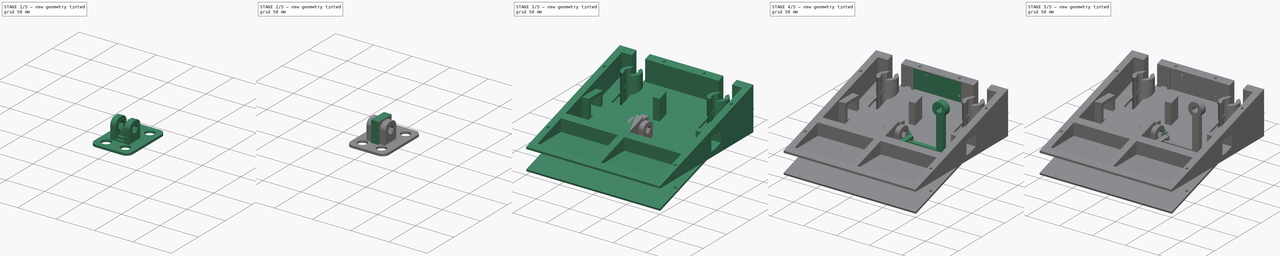
[diagram: build sequence overview — one tinted view per stage of 5, left to right]
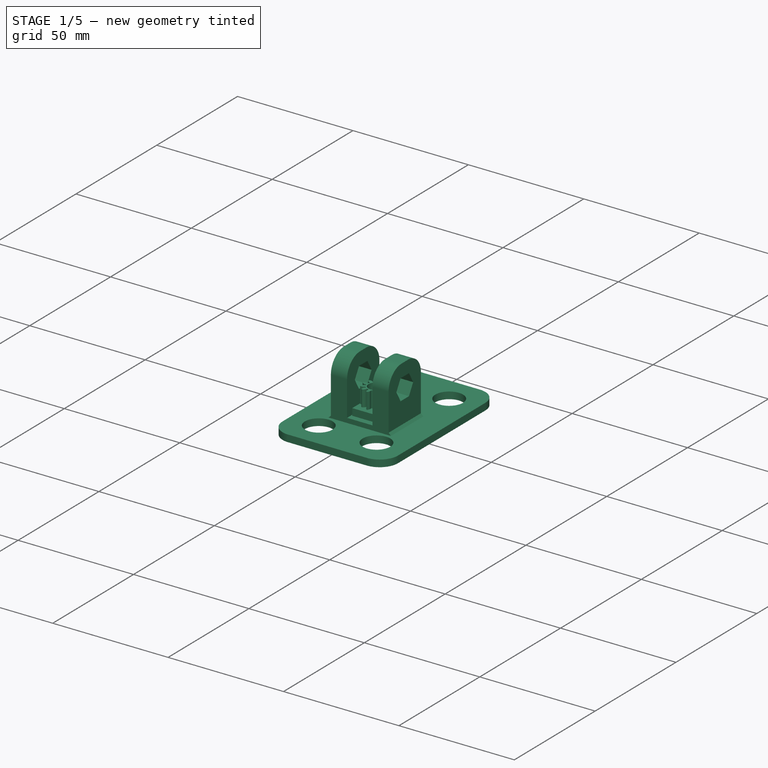
[diagram: stage 1 of 5 — iso view after this stage's code; geometry added in this stage tinted green]
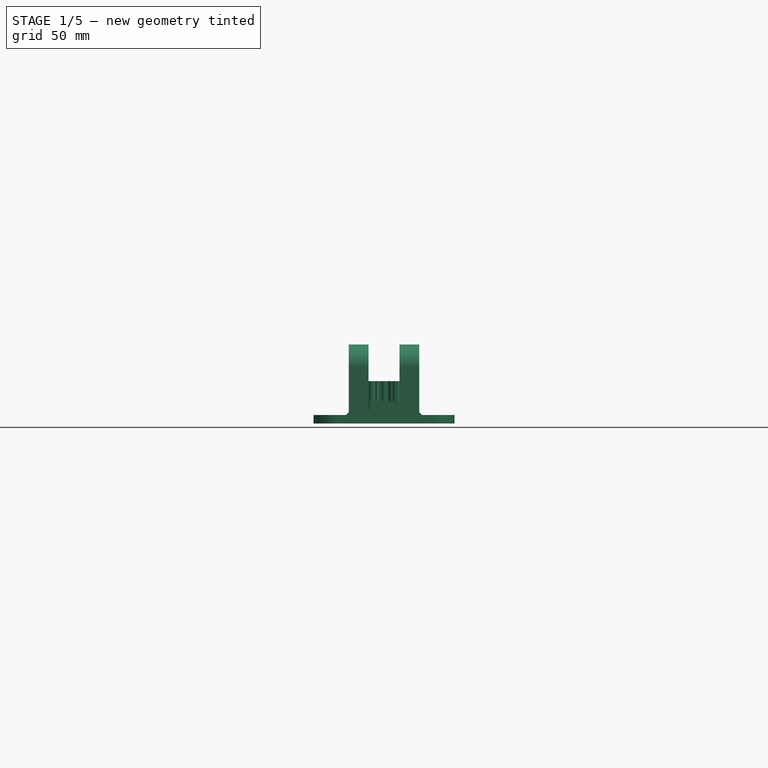
[diagram: stage 1 of 5 — front view after this stage's code; geometry added in this stage tinted green]
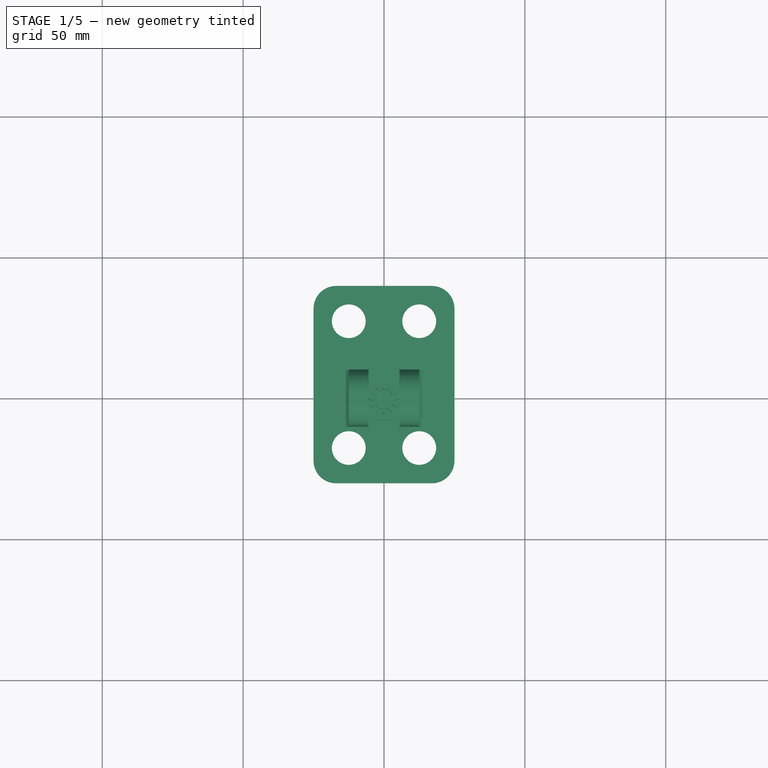
[diagram: stage 1 of 5 — top view after this stage's code; geometry added in this stage tinted green]
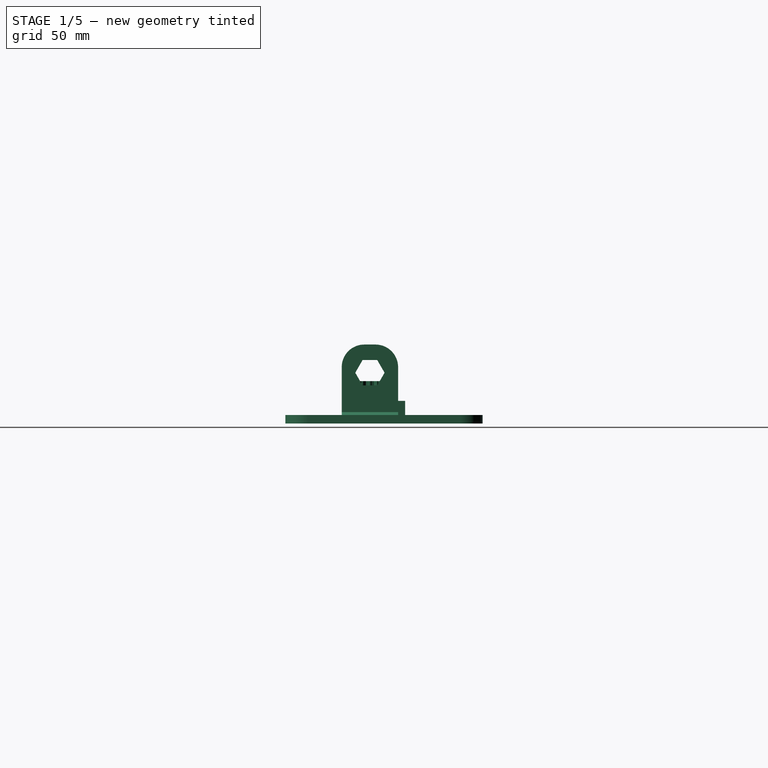
[diagram: stage 1 of 5 — right view after this stage's code; geometry added in this stage tinted green]
FCSTD DOCUMENT  (FreeCAD 0.19R24267 +99 (Git))
Label: Joystick_Pedal_Assembly
License: All rights reserved
LicenseURL: http://en.wikipedia.org/wiki/All_rights_reserved
objects: Sketcher::SketchObject×57, PartDesign::Pad×34, PartDesign::Pocket×23, PartDesign::Body×15, PartDesign::FeaturePython×3, PartDesign::Chamfer×3, PartDesign::Fillet×2
note: 199 computed .brp shape members not serialized (recipe doc carries the construction recipe); baked Part::Feature solids carry a one-line shape summary decoded from their .brp

FEATURE [Sketcher::SketchObject] Sketch054  label="OuterSquare002"
  FullyConstrained = true
  MapMode = 5
  Placement = pos=(0,0,0) rot=(0.57735,0.57735,0.57735;2.0944rad)
  Support = -> [YZ_Plane011]
  sketch-geometry (4):
    g0: LineSegment StartX=-12 StartY=27 StartZ=0 EndX=12 EndY=27 EndZ=0
    g1: LineSegment StartX=12 StartY=27 StartZ=0 EndX=12 EndY=5 EndZ=0
    g2: LineSegment StartX=12 StartY=5 StartZ=0 EndX=-12 EndY=5 EndZ=0
    g3: LineSegment StartX=-12 StartY=5 StartZ=0 EndX=-12 EndY=27 EndZ=0
  constraints (12):
    c: Coincident(g0,g1)
    c: Coincident(g1,g2)
    c: Coincident(g2,g3)
    c: Coincident(g3,g0)
    c: Horizontal(g0)
    c: Horizontal(g2)
    c: Vertical(g1)
    c: Vertical(g3)
    c: DistanceX(g0,g0) = 24
    c: DistanceY(g1,g1) = 22
    c: DistanceX(g2,g-1) = 12
    c: DistanceY(g-1,g2) = 5
FEATURE [Sketcher::SketchObject] Sketch055  label="InnerSquare002"
  FullyConstrained = true
  MapMode = 5
  Placement = pos=(0,0,0) rot=(0.57735,0.57735,0.57735;2.0944rad)
  Support = -> [YZ_Plane011]
  sketch-geometry (4):
    g0: LineSegment StartX=0 StartY=24 StartZ=0 EndX=25 EndY=24 EndZ=0
    g1: LineSegment StartX=25 StartY=24 StartZ=0 EndX=25 EndY=6 EndZ=0
    g2: LineSegment StartX=25 StartY=6 StartZ=0 EndX=0 EndY=6 EndZ=0
    g3: LineSegment StartX=0 StartY=6 StartZ=0 EndX=0 EndY=24 EndZ=0
  constraints (12):
    c: Coincident(g0,g1)
    c: Coincident(g1,g2)
    c: Coincident(g2,g3)
    c: Coincident(g3,g0)
    c: Horizontal(g0)
    c: Horizontal(g2)
    c: Vertical(g1)
    c: Vertical(g3)
    c: DistanceX(g0,g0) = 25
    c: DistanceY(g1,g1) = 18
    c: DistanceY(g-1,g2) = 6
    c: DistanceX(g2,g-1) = 0
FEATURE [Sketcher::SketchObject] Sketch056  label="InnerCircle002"
  FullyConstrained = true
  MapMode = 5
  Placement = pos=(0,0,0) rot=(0.57735,0.57735,0.57735;2.0944rad)
  Support = -> [YZ_Plane011]
  sketch-geometry (1):
    g0: Circle CenterX=0 CenterY=15 CenterZ=0 NormalX=0 NormalY=0 NormalZ=1 AngleXU=0 Radius=3.7
  constraints (3):
    c: PointOnObject(g0,g-2)
    c: Radius(g0) = 3.7
    c: DistanceY(g-1,g0) = 15
FEATURE [Sketcher::SketchObject] Sketch057
  FullyConstrained = true
  MapMode = 5
  Support = -> [XY_Plane011]
  sketch-geometry (4):
    g0: LineSegment StartX=-5 StartY=5 StartZ=0 EndX=5 EndY=5 EndZ=0
    g1: LineSegment StartX=5 StartY=5 StartZ=0 EndX=5 EndY=0 EndZ=0
    g2: LineSegment StartX=5 StartY=0 StartZ=0 EndX=-5 EndY=0 EndZ=0
    g3: LineSegment StartX=-5 StartY=0 StartZ=0 EndX=-5 EndY=5 EndZ=0
  constraints (12):
    c: Coincident(g0,g1)
    c: Coincident(g1,g2)
    c: Coincident(g2,g3)
    c: Coincident(g3,g0)
    c: Horizontal(g0)
    c: Horizontal(g2)
    c: Vertical(g1)
    c: Vertical(g3)
    c: DistanceY(g1,g1) = 5
    c: DistanceX(g0,g0) = 10
    c: DistanceX(g0,g-1) = 5
    c: DistanceY(g-1,g0) = 5
FEATURE [Sketcher::SketchObject] Sketch058  label="Bottom003"
  FullyConstrained = true
  MapMode = 5
  Support = -> [XY_Plane011]
  sketch-geometry (4):
    g0: LineSegment StartX=-5 StartY=12.5 StartZ=0 EndX=5 EndY=12.5 EndZ=0
    g1: LineSegment StartX=5 StartY=12.5 StartZ=0 EndX=5 EndY=-7.5 EndZ=0
    g2: LineSegment StartX=5 StartY=-7.5 StartZ=0 EndX=-5 EndY=-7.5 EndZ=0
    g3: LineSegment StartX=-5 StartY=-7.5 StartZ=0 EndX=-5 EndY=12.5 EndZ=0
  constraints (12):
    c: Coincident(g0,g1)
    c: Coincident(g1,g2)
    c: Coincident(g2,g3)
    c: Coincident(g3,g0)
    c: Horizontal(g0)
    c: Horizontal(g2)
    c: Vertical(g1)
    c: Vertical(g3)
    c: DistanceX(g0,g0) = 10
    c: DistanceY(g1,g1) = 20
    c: DistanceX(g0,g-1) = 5
    c: DistanceY(g-1,g0) = 12.5
FEATURE [PartDesign::Pad] Pad028
  Direction = (1,1,1)
  Length = 5
  Length2 = 100
  Profile = -> Sketch058
  Refine = true
  Type = 0
FEATURE [PartDesign::Body] Body011  label="Encoder_Holder_Right"
  Group = -> [Sketch055,Sketch056,Sketch054,Sketch058,Sketch059,Pad028,Pad027,Pad030,Pocket021,Pocket020,Sketch057,Pad029,Sketch065,Pocket025]
  Origin = -> Origin011
  Placement = pos=(35,37.5,-1) rot=(0,0,1;0rad)
  Tip = -> Pocket025
FEATURE [PartDesign::FeaturePython] involutegear002  # WARN: FeaturePython — macro-defined, semantics opaque (R4)
  AttacherType = Attacher::AttachEngine3D
  backlash = 0
  beta = 0
  clearance = 0.25
  da = 11.2
  df = 7.6
  double_helix = false
  dw = 9.6
  head = 0
  height = 12
  module = 0.8
  numpoints = 6
  pressure_angle = 20
  properties_from_tool = false
  reversed_backlash = false
  shift = 0
  simple = false
  teeth = 12
  transverse_pitch = 2.51327
  undercut = false
  version = 0.0.3
FEATURE [Sketcher::SketchObject] Sketch066
  FullyConstrained = true
  MapMode = 5
  Support = -> [XY_Plane013]
  sketch-geometry (1):
    g0: Circle CenterX=0 CenterY=0 CenterZ=0 NormalX=0 NormalY=0 NormalZ=1 AngleXU=0 Radius=3.2
  constraints (2):
    c: Coincident(g0,g-1)
    c: Radius(g0) = 3.2
FEATURE [PartDesign::Pocket] Pocket026
  BaseFeature = -> involutegear002
  Length = 30
  Length2 = 100
  Midplane = true
  Profile = -> Sketch066
  Refine = true
  Type = 0
FEATURE [PartDesign::Body] Body013  label="Gear"
  Group = -> [Sketch066,involutegear002,Pocket026]
  Origin = -> Origin013
  Placement = pos=(-60,50,20) rot=(0,1,0;1.5708rad)
  Tip = -> Pocket026
FEATURE [Sketcher::SketchObject] Sketch067
  FullyConstrained = true
  MapMode = 5
  Placement = pos=(0,0,0) rot=(0.57735,0.57735,0.57735;2.0944rad)
  Support = -> [YZ_Plane014]
  sketch-geometry (4):
    g0: LineSegment StartX=-20 StartY=35 StartZ=0 EndX=20 EndY=35 EndZ=0
    g1: LineSegment StartX=20 StartY=35 StartZ=0 EndX=20 EndY=2 EndZ=0
    g2: LineSegment StartX=20 StartY=2 StartZ=0 EndX=-20 EndY=2 EndZ=0
    g3: LineSegment StartX=-20 StartY=2 StartZ=0 EndX=-20 EndY=35 EndZ=0
  constraints (12):
    c: Coincident(g0,g1)
    c: Coincident(g1,g2)
    c: Coincident(g2,g3)
    c: Coincident(g3,g0)
    c: Horizontal(g0)
    c: Horizontal(g2)
    c: Vertical(g1)
    c: Vertical(g3)
    c: DistanceX(g0,g0) = 40
    c: DistanceX(g0,g-1) = 20
    c: DistanceY(g1,g1) = 33
    c: DistanceY(g-1,g0) = 35
FEATURE [Sketcher::SketchObject] Sketch068  label="Connector"
  FullyConstrained = true
  MapMode = 5
  Placement = pos=(0,0,0) rot=(0.57735,0.57735,0.57735;2.0944rad)
  Support = -> [YZ_Plane014]
  sketch-geometry (11):
    g0: LineSegment StartX=-10 StartY=25 StartZ=0 EndX=10 EndY=25 EndZ=0
    g1: LineSegment StartX=10 StartY=25 StartZ=0 EndX=10 EndY=0 EndZ=0
    g2: LineSegment StartX=10 StartY=0 StartZ=0 EndX=-10 EndY=0 EndZ=0
    g3: LineSegment StartX=-10 StartY=0 StartZ=0 EndX=-10 EndY=25 EndZ=0
    g4: LineSegment StartX=2.6 StartY=10.4967 StartZ=0 EndX=5.2 EndY=15 EndZ=0
    g5: LineSegment StartX=5.2 StartY=15 StartZ=0 EndX=2.6 EndY=19.5033 EndZ=0
    g6: LineSegment StartX=2.6 StartY=19.5033 StartZ=0 EndX=-2.6 EndY=19.5033 EndZ=0
    g7: LineSegment StartX=-2.6 StartY=19.5033 StartZ=0 EndX=-5.2 EndY=15 EndZ=0
    g8: LineSegment StartX=-5.2 StartY=15 StartZ=0 EndX=-2.6 EndY=10.4967 EndZ=0
    g9: LineSegment StartX=-2.6 StartY=10.4967 StartZ=0 EndX=2.6 EndY=10.4967 EndZ=0
    g10: Circle CenterX=0 CenterY=15 CenterZ=0 NormalX=0 NormalY=0 NormalZ=1 AngleXU=0 Radius=5.2
  constraints (29):
    c: Coincident(g0,g1)
    c: Coincident(g1,g2)
    c: Coincident(g2,g3)
    c: Coincident(g3,g0)
    c: Horizontal(g0)
    c: Horizontal(g2)
    c: Vertical(g1)
    c: Vertical(g3)
    c: PointOnObject(g1,g-1)
    c: DistanceX(g0,g0) = 20
    c: DistanceY(g1,g1) = 25
    c: DistanceX(g0,g-1) = 10
    c: Coincident(g4,g5)
    c: Coincident(g5,g6)
    c: Coincident(g6,g7)
    c: Coincident(g7,g8)
    c: Coincident(g8,g9)
    c: Coincident(g9,g4)
    c: Equal(g4, g5-g9) x5
    c: PointOnObject(g4,g10)
    c: PointOnObject(g5,g10)
    c: PointOnObject(g6,g10)
    c: PointOnObject(g7,g10)
    c: PointOnObject(g8,g10)
    c: PointOnObject(g9,g10)
    c: PointOnObject(g10,g-2)
    c: Radius(g10) = 5.2
    c: DistanceY(g-1,g10) = 15
    c: DistanceY(g10,g7) = 0
FEATURE [Sketcher::SketchObject] Sketch069  label="Pedal"
  FullyConstrained = true
  MapMode = 5
  Support = -> [XY_Plane014]
  sketch-geometry (8):
    g0: LineSegment StartX=-25 StartY=40 StartZ=0 EndX=25 EndY=40 EndZ=0
    g1: LineSegment StartX=25 StartY=40 StartZ=0 EndX=25 EndY=-30 EndZ=0
    g2: LineSegment StartX=25 StartY=-30 StartZ=0 EndX=-25 EndY=-30 EndZ=0
    g3: LineSegment StartX=-25 StartY=-30 StartZ=0 EndX=-25 EndY=40 EndZ=0
    g4: Circle CenterX=-12.5 CenterY=27.5 CenterZ=0 NormalX=0 NormalY=0 NormalZ=1 AngleXU=0 Radius=6
    g5: Circle CenterX=12.5 CenterY=27.5 CenterZ=0 NormalX=0 NormalY=0 NormalZ=1 AngleXU=0 Radius=6
    g6: Circle CenterX=-12.5 CenterY=-17.5 CenterZ=0 NormalX=0 NormalY=0 NormalZ=1 AngleXU=0 Radius=6
    g7: Circle CenterX=12.5 CenterY=-17.5 CenterZ=0 NormalX=0 NormalY=0 NormalZ=1 AngleXU=0 Radius=6
  constraints (24):
    c: Coincident(g0,g1)
    c: Coincident(g1,g2)
    c: Coincident(g2,g3)
    c: Coincident(g3,g0)
    c: Horizontal(g0)
    c: Horizontal(g2)
    c: Vertical(g1)
    c: Vertical(g3)
    c: DistanceX(g0,g0) = 50
    c: DistanceY(g1,g1) = 70
    c: DistanceY(g-1,g0) = 40
    c: DistanceX(g0,g-1) = 25
    c: DistanceX(g4,g5) = 25
    c: DistanceX(g6,g7) = 25
    c: DistanceY(g7,g6) = 0
    c: DistanceY(g5,g4) = 0
    c: DistanceY(g6,g4) = 45
    c: DistanceY(g-1,g4) = 27.5
    c: DistanceX(g4,g-1) = 12.5
    c: DistanceX(g6,g4) = 0
    c: Radius(g4) = 6
    c: Radius(g5) = 6
    c: Radius(g7) = 6
    c: Radius(g6) = 6
FEATURE [PartDesign::Pad] Pad033
  Direction = (1,1,1)
  Length = 3
  Length2 = 100
  Profile = -> Sketch069
  Refine = true
  Reversed = true
  Type = 0
FEATURE [PartDesign::Pad] Pad034
  BaseFeature = -> Pad033
  Direction = (1,1,1)
  Length = 25
  Length2 = 100
  Midplane = true
  Profile = -> Sketch068
  Refine = true
  Type = 0
FEATURE [PartDesign::Pocket] Pocket027
  BaseFeature = -> Pad034
  Length = 11
  Length2 = 100
  Midplane = true
  Profile = -> Sketch067
  Refine = true
  Type = 0
FEATURE [PartDesign::Fillet] Fillet
  Base = -> Pocket027 [Edge5,Edge1,Edge2,Edge8,Edge33,Edge29,Edge43,Edge47]
  BaseFeature = -> Pocket027
  Radius = 8
  Refine = true
  SupportTransform = false
FEATURE [PartDesign::Chamfer] Chamfer001
  Angle = 45
  Base = -> Fillet [Edge15,Edge17]
  BaseFeature = -> Fillet
  ChamferType = 0
  FlipDirection = false
  Refine = true
  Size = 1
  Size2 = 1
  SupportTransform = false
FEATURE [PartDesign::Body] Body014  label="Pedal001"
  Group = -> [Sketch069,Sketch068,Sketch067,Pad033,Pad034,Pocket027,Fillet,Chamfer001]
  Origin = -> Origin014
  Placement = pos=(-66,77.2857,90.1075) rot=(1,0,0;3.66519rad)
  Tip = -> Chamfer001
FEATURE [Sketcher::SketchObject] Sketch070  label="Pedal002"
  FullyConstrained = true
  MapMode = 5
  Support = -> [XY_Plane015]
  sketch-geometry (8):
    g0: LineSegment StartX=-25 StartY=40 StartZ=0 EndX=25 EndY=40 EndZ=0
    g1: LineSegment StartX=25 StartY=40 StartZ=0 EndX=25 EndY=-30 EndZ=0
    g2: LineSegment StartX=25 StartY=-30 StartZ=0 EndX=-25 EndY=-30 EndZ=0
    g3: LineSegment StartX=-25 StartY=-30 StartZ=0 EndX=-25 EndY=40 EndZ=0
    g4: Circle CenterX=-12.5 CenterY=27.5 CenterZ=0 NormalX=0 NormalY=0 NormalZ=1 AngleXU=0 Radius=6
    g5: Circle CenterX=12.5 CenterY=27.5 CenterZ=0 NormalX=0 NormalY=0 NormalZ=1 AngleXU=0 Radius=6
    g6: Circle CenterX=-12.5 CenterY=-17.5 CenterZ=0 NormalX=0 NormalY=0 NormalZ=1 AngleXU=0 Radius=6
    g7: Circle CenterX=12.5 CenterY=-17.5 CenterZ=0 NormalX=0 NormalY=0 NormalZ=1 AngleXU=0 Radius=6
  constraints (24):
    c: Coincident(g0,g1)
    c: Coincident(g1,g2)
    c: Coincident(g2,g3)
    c: Coincident(g3,g0)
    c: Horizontal(g0)
    c: Horizontal(g2)
    c: Vertical(g1)
    c: Vertical(g3)
    c: DistanceX(g0,g0) = 50
    c: DistanceY(g1,g1) = 70
    c: DistanceY(g-1,g0) = 40
    c: DistanceX(g0,g-1) = 25
    c: DistanceX(g4,g5) = 25
    c: DistanceX(g6,g7) = 25
    c: DistanceY(g7,g6) = 0
    c: DistanceY(g5,g4) = 0
    c: DistanceY(g6,g4) = 45
    c: DistanceY(g-1,g4) = 27.5
    c: DistanceX(g4,g-1) = 12.5
    c: DistanceX(g6,g4) = 0
    c: Radius(g4) = 6
    c: Radius(g5) = 6
    c: Radius(g7) = 6
    c: Radius(g6) = 6
FEATURE [PartDesign::Pad] Pad035
  Direction = (1,1,1)
  Length = 3
  Length2 = 100
  Profile = -> Sketch070
  Refine = true
  Reversed = true
  Type = 0
FEATURE [Sketcher::SketchObject] Sketch071
  FullyConstrained = true
  MapMode = 5
  Placement = pos=(0,0,0) rot=(0.57735,0.57735,0.57735;2.0944rad)
  Support = -> [YZ_Plane015]
  sketch-geometry (4):
    g0: LineSegment StartX=-20 StartY=35 StartZ=0 EndX=20 EndY=35 EndZ=0
    g1: LineSegment StartX=20 StartY=35 StartZ=0 EndX=20 EndY=2 EndZ=0
    g2: LineSegment StartX=20 StartY=2 StartZ=0 EndX=-20 EndY=2 EndZ=0
    g3: LineSegment StartX=-20 StartY=2 StartZ=0 EndX=-20 EndY=35 EndZ=0
  constraints (12):
    c: Coincident(g0,g1)
    c: Coincident(g1,g2)
    c: Coincident(g2,g3)
    c: Coincident(g3,g0)
    c: Horizontal(g0)
    c: Horizontal(g2)
    c: Vertical(g1)
    c: Vertical(g3)
    c: DistanceX(g0,g0) = 40
    c: DistanceX(g0,g-1) = 20
    c: DistanceY(g1,g1) = 33
    c: DistanceY(g-1,g0) = 35
FEATURE [Sketcher::SketchObject] Sketch072  label="Connector001"
  FullyConstrained = true
  MapMode = 5
  Placement = pos=(0,0,0) rot=(0.57735,0.57735,0.57735;2.0944rad)
  Support = -> [YZ_Plane015]
  sketch-geometry (11):
    g0: LineSegment StartX=-10 StartY=25 StartZ=0 EndX=10 EndY=25 EndZ=0
    g1: LineSegment StartX=10 StartY=25 StartZ=0 EndX=10 EndY=0 EndZ=0
    g2: LineSegment StartX=10 StartY=0 StartZ=0 EndX=-10 EndY=0 EndZ=0
    g3: LineSegment StartX=-10 StartY=0 StartZ=0 EndX=-10 EndY=25 EndZ=0
    g4: LineSegment StartX=2.6 StartY=10.4967 StartZ=0 EndX=5.2 EndY=15 EndZ=0
    g5: LineSegment StartX=5.2 StartY=15 StartZ=0 EndX=2.6 EndY=19.5033 EndZ=0
    g6: LineSegment StartX=2.6 StartY=19.5033 StartZ=0 EndX=-2.6 EndY=19.5033 EndZ=0
    g7: LineSegment StartX=-2.6 StartY=19.5033 StartZ=0 EndX=-5.2 EndY=15 EndZ=0
    g8: LineSegment StartX=-5.2 StartY=15 StartZ=0 EndX=-2.6 EndY=10.4967 EndZ=0
    g9: LineSegment StartX=-2.6 StartY=10.4967 StartZ=0 EndX=2.6 EndY=10.4967 EndZ=0
    g10: Circle CenterX=0 CenterY=15 CenterZ=0 NormalX=0 NormalY=0 NormalZ=1 AngleXU=0 Radius=5.2
  constraints (29):
    c: Coincident(g0,g1)
    c: Coincident(g1,g2)
    c: Coincident(g2,g3)
    c: Coincident(g3,g0)
    c: Horizontal(g0)
    c: Horizontal(g2)
    c: Vertical(g1)
    c: Vertical(g3)
    c: PointOnObject(g1,g-1)
    c: DistanceX(g0,g0) = 20
    c: DistanceY(g1,g1) = 25
    c: DistanceX(g0,g-1) = 10
    c: Coincident(g4,g5)
    c: Coincident(g5,g6)
    c: Coincident(g6,g7)
    c: Coincident(g7,g8)
    c: Coincident(g8,g9)
    c: Coincident(g9,g4)
    c: Equal(g4, g5-g9) x5
    c: PointOnObject(g4,g10)
    c: PointOnObject(g5,g10)
    c: PointOnObject(g6,g10)
    c: PointOnObject(g7,g10)
    c: PointOnObject(g8,g10)
    c: PointOnObject(g9,g10)
    c: PointOnObject(g10,g-2)
    c: Radius(g10) = 5.2
    c: DistanceY(g-1,g10) = 15
    c: DistanceY(g10,g7) = 0
FEATURE [PartDesign::Pad] Pad036
  BaseFeature = -> Pad035
  Direction = (1,1,1)
  Length = 25
  Length2 = 100
  Midplane = true
  Profile = -> Sketch072
  Refine = true
  Type = 0
FEATURE [PartDesign::Pocket] Pocket028
  BaseFeature = -> Pad036
  Length = 11
  Length2 = 100
  Midplane = true
  Profile = -> Sketch071
  Refine = true
  Type = 0
FEATURE [PartDesign::Fillet] Fillet001
  Base = -> Pocket028 [Edge5,Edge1,Edge2,Edge8,Edge33,Edge29,Edge43,Edge47]
  BaseFeature = -> Pocket028
  Radius = 8
  Refine = true
  SupportTransform = false
FEATURE [PartDesign::Chamfer] Chamfer002
  Angle = 45
  Base = -> Fillet001 [Edge15,Edge17]
  BaseFeature = -> Fillet001
  ChamferType = 0
  FlipDirection = false
  Refine = true
  Size = 1
  Size2 = 1
  SupportTransform = false
FEATURE [PartDesign::Body] Body015  label="Pedal003"
  Group = -> [Sketch070,Sketch072,Sketch071,Pad035,Pad036,Pocket028,Fillet001,Chamfer002]
  Origin = -> Origin015
  Placement = pos=(65,77.2857,90.1075) rot=(1,0,0;3.66519rad)
  Tip = -> Chamfer002
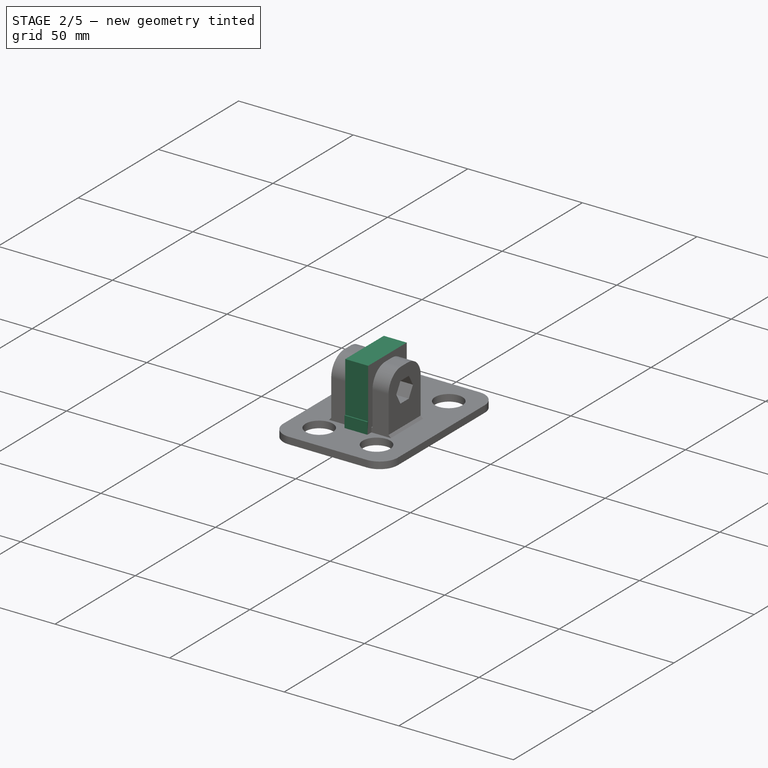
[diagram: stage 2 of 5 — iso view after this stage's code; geometry added in this stage tinted green]
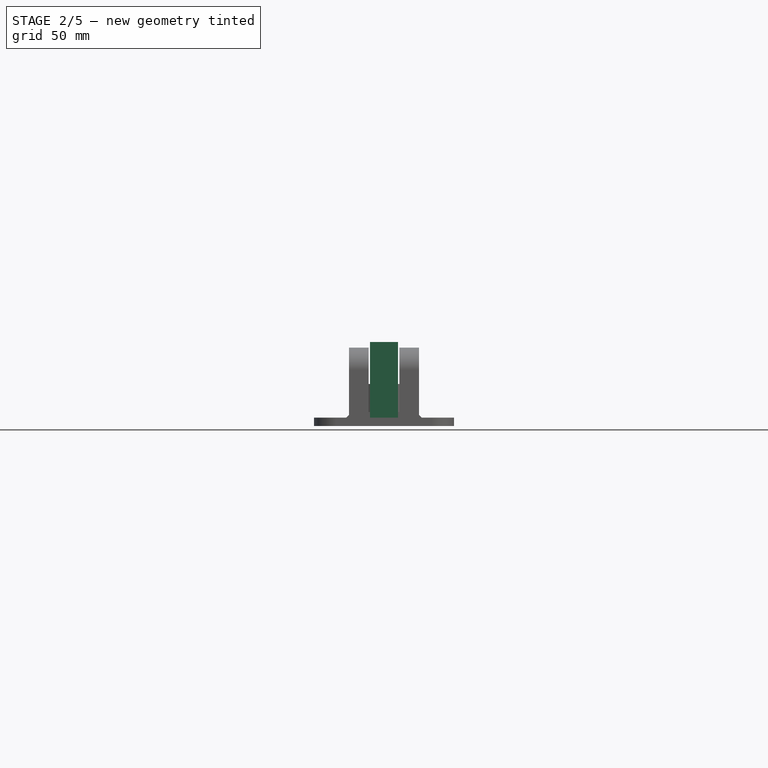
[diagram: stage 2 of 5 — front view after this stage's code; geometry added in this stage tinted green]
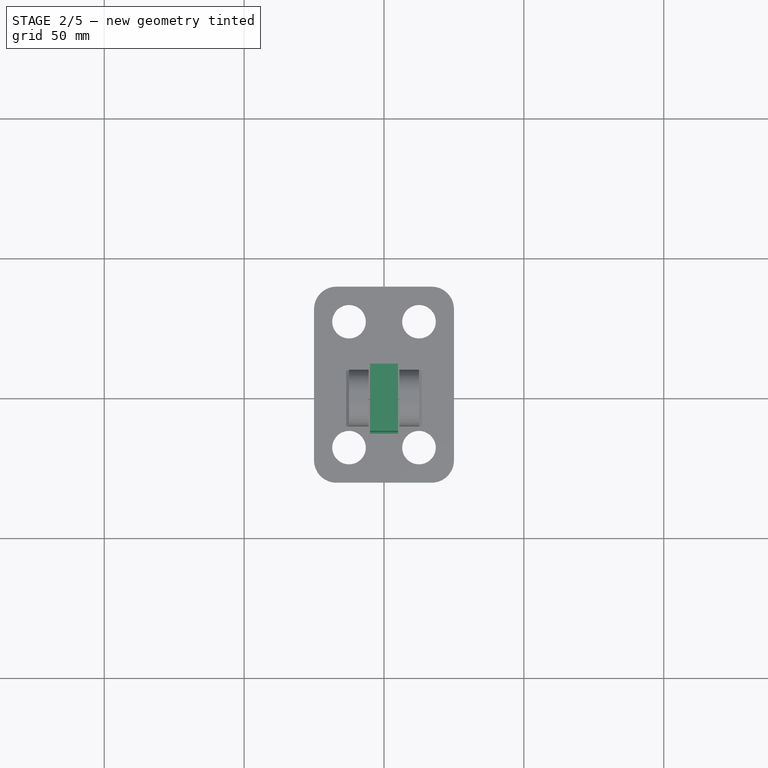
[diagram: stage 2 of 5 — top view after this stage's code; geometry added in this stage tinted green]
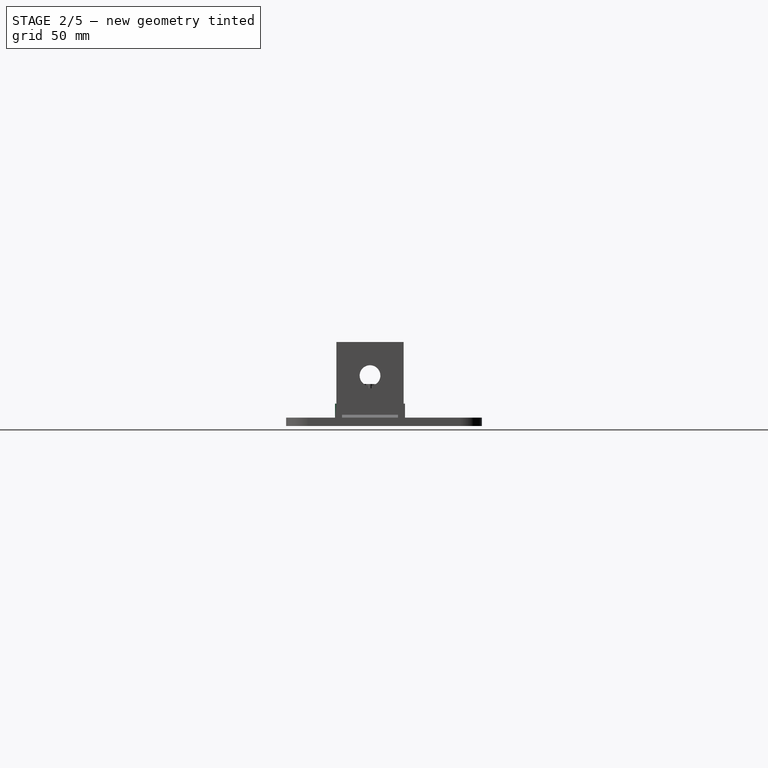
[diagram: stage 2 of 5 — right view after this stage's code; geometry added in this stage tinted green]
FEATURE [PartDesign::Body] Body009  label="Left_Pedal_Rod"
  Group = -> [Sketch037,Sketch038,Sketch039,involutegear001,Sketch040,Pad021,Pad020,Pad022,Pocket013]
  Origin = -> Origin009
  Placement = pos=(-60,20,15) rot=(0,0,1;1.5708rad)
  Tip = -> Pocket013
FEATURE [Sketcher::SketchObject] Sketch048  label="InnerSquare001"
  FullyConstrained = true
  MapMode = 5
  Placement = pos=(0,0,0) rot=(0.57735,0.57735,0.57735;2.0944rad)
  Support = -> [YZ_Plane010]
  sketch-geometry (4):
    g0: LineSegment StartX=-16 StartY=24 StartZ=0 EndX=0 EndY=24 EndZ=0
    g1: LineSegment StartX=0 StartY=24 StartZ=0 EndX=0 EndY=6 EndZ=0
    g2: LineSegment StartX=0 StartY=6 StartZ=0 EndX=-16 EndY=6 EndZ=0
    g3: LineSegment StartX=-16 StartY=6 StartZ=0 EndX=-16 EndY=24 EndZ=0
  constraints (12):
    c: Coincident(g0,g1)
    c: Coincident(g1,g2)
    c: Coincident(g2,g3)
    c: Coincident(g3,g0)
    c: Horizontal(g0)
    c: Horizontal(g2)
    c: Vertical(g1)
    c: Vertical(g3)
    c: DistanceX(g0,g0) = 16
    c: DistanceY(g1,g1) = 18
    c: DistanceY(g-1,g2) = 6
    c: DistanceX(g2,g-1) = 16
FEATURE [Sketcher::SketchObject] Sketch049
  FullyConstrained = true
  MapMode = 5
  Support = -> [XY_Plane010]
  sketch-geometry (4):
    g0: LineSegment StartX=-5 StartY=5 StartZ=0 EndX=5 EndY=5 EndZ=0
    g1: LineSegment StartX=5 StartY=5 StartZ=0 EndX=5 EndY=-5 EndZ=0
    g2: LineSegment StartX=5 StartY=-5 StartZ=0 EndX=-5 EndY=-5 EndZ=0
    g3: LineSegment StartX=-5 StartY=-5 StartZ=0 EndX=-5 EndY=5 EndZ=0
  constraints (12):
    c: Coincident(g0,g1)
    c: Coincident(g1,g2)
    c: Coincident(g2,g3)
    c: Coincident(g3,g0)
    c: Horizontal(g0)
    c: Horizontal(g2)
    c: Vertical(g1)
    c: Vertical(g3)
    c: DistanceX(g0,g0) = 10
    c: DistanceY(g1,g1) = 10
    c: DistanceX(g0,g-1) = 5
    c: DistanceY(g-1,g0) = 5
FEATURE [Sketcher::SketchObject] Sketch050  label="OuterSquare001"
  FullyConstrained = true
  MapMode = 5
  Placement = pos=(0,0,0) rot=(0.57735,0.57735,0.57735;2.0944rad)
  Support = -> [YZ_Plane010]
  sketch-geometry (4):
    g0: LineSegment StartX=-12 StartY=27 StartZ=0 EndX=12 EndY=27 EndZ=0
    g1: LineSegment StartX=12 StartY=27 StartZ=0 EndX=12 EndY=5 EndZ=0
    g2: LineSegment StartX=12 StartY=5 StartZ=0 EndX=-12 EndY=5 EndZ=0
    g3: LineSegment StartX=-12 StartY=5 StartZ=0 EndX=-12 EndY=27 EndZ=0
  constraints (12):
    c: Coincident(g0,g1)
    c: Coincident(g1,g2)
    c: Coincident(g2,g3)
    c: Coincident(g3,g0)
    c: Horizontal(g0)
    c: Horizontal(g2)
    c: Vertical(g1)
    c: Vertical(g3)
    c: DistanceX(g0,g0) = 24
    c: DistanceY(g1,g1) = 22
    c: DistanceX(g2,g-1) = 12
    c: DistanceY(g-1,g2) = 5
FEATURE [Sketcher::SketchObject] Sketch051  label="InnerCircle001"
  FullyConstrained = true
  MapMode = 5
  Placement = pos=(0,0,0) rot=(0.57735,0.57735,0.57735;2.0944rad)
  Support = -> [YZ_Plane010]
  sketch-geometry (1):
    g0: Circle CenterX=0 CenterY=15 CenterZ=0 NormalX=0 NormalY=0 NormalZ=1 AngleXU=0 Radius=3.7
  constraints (3):
    c: PointOnObject(g0,g-2)
    c: Radius(g0) = 3.7
    c: DistanceY(g-1,g0) = 15
FEATURE [Sketcher::SketchObject] Sketch052  label="Bottom002"
  FullyConstrained = true
  MapMode = 5
  Support = -> [XY_Plane010]
  sketch-geometry (4):
    g0: LineSegment StartX=-5 StartY=7.5 StartZ=0 EndX=5 EndY=7.5 EndZ=0
    g1: LineSegment StartX=5 StartY=7.5 StartZ=0 EndX=5 EndY=-12.5 EndZ=0
    g2: LineSegment StartX=5 StartY=-12.5 StartZ=0 EndX=-5 EndY=-12.5 EndZ=0
    g3: LineSegment StartX=-5 StartY=-12.5 StartZ=0 EndX=-5 EndY=7.5 EndZ=0
  constraints (12):
    c: Coincident(g0,g1)
    c: Coincident(g1,g2)
    c: Coincident(g2,g3)
    c: Coincident(g3,g0)
    c: Horizontal(g0)
    c: Horizontal(g2)
    c: Vertical(g1)
    c: Vertical(g3)
    c: DistanceX(g0,g0) = 10
    c: DistanceY(g1,g1) = 20
    c: DistanceX(g0,g-1) = 5
    c: DistanceY(g-1,g0) = 7.5
FEATURE [PartDesign::Pad] Pad024
  Direction = (1,1,1)
  Length = 5
  Length2 = 100
  Profile = -> Sketch052
  Refine = true
  Type = 0
FEATURE [PartDesign::Pad] Pad023
  BaseFeature = -> Pad024
  Direction = (1,1,1)
  Length = 6
  Length2 = 100
  Profile = -> Sketch049
  Refine = true
  Type = 0
FEATURE [PartDesign::Pad] Pad025
  BaseFeature = -> Pad023
  Direction = (1,1,1)
  Length = 10
  Length2 = 100
  Midplane = true
  Profile = -> Sketch050
  Refine = true
  Type = 0
FEATURE [PartDesign::Pocket] Pocket019
  BaseFeature = -> Pad025
  Length = 6
  Length2 = 100
  Profile = -> Sketch048
  Refine = true
  Type = 0
FEATURE [PartDesign::Pocket] Pocket018
  BaseFeature = -> Pocket019
  Length = 20
  Length2 = 100
  Midplane = true
  Profile = -> Sketch051
  Refine = true
  Type = 0
FEATURE [Sketcher::SketchObject] Sketch053
  FullyConstrained = true
  MapMode = 5
  Support = -> [XY_Plane010]
  sketch-geometry (4):
    g0: LineSegment StartX=-5 StartY=0 StartZ=0 EndX=5 EndY=0 EndZ=0
    g1: LineSegment StartX=5 StartY=0 StartZ=0 EndX=5 EndY=-5 EndZ=0
    g2: LineSegment StartX=5 StartY=-5 StartZ=0 EndX=-5 EndY=-5 EndZ=0
    g3: LineSegment StartX=-5 StartY=-5 StartZ=0 EndX=-5 EndY=0 EndZ=0
  constraints (12):
    c: Coincident(g0,g1)
    c: Coincident(g1,g2)
    c: Coincident(g2,g3)
    c: Coincident(g3,g0)
    c: Horizontal(g0)
    c: Horizontal(g2)
    c: Vertical(g1)
    c: Vertical(g3)
    c: DistanceY(g1,g1) = 5
    c: DistanceX(g0,g0) = 10
    c: DistanceX(g-1,g0) = 5
    c: DistanceY(g-1,g0) = 0
FEATURE [PartDesign::Pad] Pad026
  BaseFeature = -> Pocket018
  Direction = (1,1,1)
  Length = 2
  Length2 = 100
  Profile = -> Sketch053
  Refine = true
  Reversed = true
  Type = 0
FEATURE [Sketcher::SketchObject] Sketch059
  FullyConstrained = true
  MapMode = 5
  Support = -> [XY_Plane011]
  sketch-geometry (4):
    g0: LineSegment StartX=-5 StartY=5 StartZ=0 EndX=5 EndY=5 EndZ=0
    g1: LineSegment StartX=5 StartY=5 StartZ=0 EndX=5 EndY=-5 EndZ=0
    g2: LineSegment StartX=5 StartY=-5 StartZ=0 EndX=-5 EndY=-5 EndZ=0
    g3: LineSegment StartX=-5 StartY=-5 StartZ=0 EndX=-5 EndY=5 EndZ=0
  constraints (12):
    c: Coincident(g0,g1)
    c: Coincident(g1,g2)
    c: Coincident(g2,g3)
    c: Coincident(g3,g0)
    c: Horizontal(g0)
    c: Horizontal(g2)
    c: Vertical(g1)
    c: Vertical(g3)
    c: DistanceX(g0,g0) = 10
    c: DistanceY(g1,g1) = 10
    c: DistanceX(g0,g-1) = 5
    c: DistanceY(g-1,g0) = 5
FEATURE [PartDesign::Pad] Pad027
  BaseFeature = -> Pad028
  Direction = (1,1,1)
  Length = 6
  Length2 = 100
  Profile = -> Sketch059
  Refine = true
  Type = 0
FEATURE [PartDesign::Pad] Pad030
  BaseFeature = -> Pad027
  Direction = (1,1,1)
  Length = 10
  Length2 = 100
  Midplane = true
  Profile = -> Sketch054
  Refine = true
  Type = 0
FEATURE [PartDesign::Pocket] Pocket021
  BaseFeature = -> Pad030
  Length = 5
  Length2 = 100
  Profile = -> Sketch055
  Refine = true
  Type = 0
FEATURE [PartDesign::Pocket] Pocket020
  BaseFeature = -> Pocket021
  Length = 20
  Length2 = 100
  Midplane = true
  Profile = -> Sketch056
  Refine = true
  Type = 0
FEATURE [PartDesign::Pad] Pad029
  BaseFeature = -> Pocket020
  Direction = (1,1,1)
  Length = 2
  Length2 = 100
  Profile = -> Sketch057
  Refine = true
  Reversed = true
  Type = 0
FEATURE [PartDesign::Body] Body012  label="Cover"
  Group = -> [Sketch063,Sketch062,Sketch060,Sketch061,Pad032,Pad031,Pocket023,Pocket022]
  Origin = -> Origin012
  Placement = pos=(0,0,36) rot=(0,0,1;0rad)
  Tip = -> Pocket022
FEATURE [Sketcher::SketchObject] Sketch064
  FullyConstrained = true
  MapMode = 5
  Placement = pos=(0,0,0) rot=(0.57735,0.57735,0.57735;2.0944rad)
  Support = -> [YZ_Plane010]
  sketch-geometry (1):
    g0: Circle CenterX=0 CenterY=15 CenterZ=0 NormalX=0 NormalY=0 NormalZ=1 AngleXU=0 Radius=9
  constraints (3):
    c: PointOnObject(g0,g-2)
    c: Radius(g0) = 9
    c: DistanceY(g-1,g0) = 15
FEATURE [PartDesign::Pocket] Pocket024
  BaseFeature = -> Pad026
  Length = 5
  Length2 = 100
  Profile = -> Sketch064
  Type = 0
FEATURE [PartDesign::Body] Body010  label="Encoder_Holder_Left"
  Group = -> [Sketch048,Sketch051,Sketch050,Sketch052,Sketch049,Pad024,Pad023,Pad025,Pocket019,Pocket018,Sketch053,Pad026,Sketch064,Pocket024]
  Origin = -> Origin010
  Placement = pos=(-35,37.5,-1) rot=(0,0,1;3.14159rad)
  Tip = -> Pocket024
FEATURE [Sketcher::SketchObject] Sketch065
  FullyConstrained = true
  MapMode = 5
  Placement = pos=(0,0,0) rot=(0.57735,0.57735,0.57735;2.0944rad)
  Support = -> [YZ_Plane011]
  sketch-geometry (1):
    g0: Circle CenterX=0 CenterY=15 CenterZ=0 NormalX=0 NormalY=0 NormalZ=1 AngleXU=0 Radius=9
  constraints (3):
    c: PointOnObject(g0,g-2)
    c: Radius(g0) = 9
    c: DistanceY(g-1,g0) = 15
FEATURE [PartDesign::Pocket] Pocket025
  BaseFeature = -> Pad029
  Length = 5
  Length2 = 100
  Profile = -> Sketch065
  Type = 0
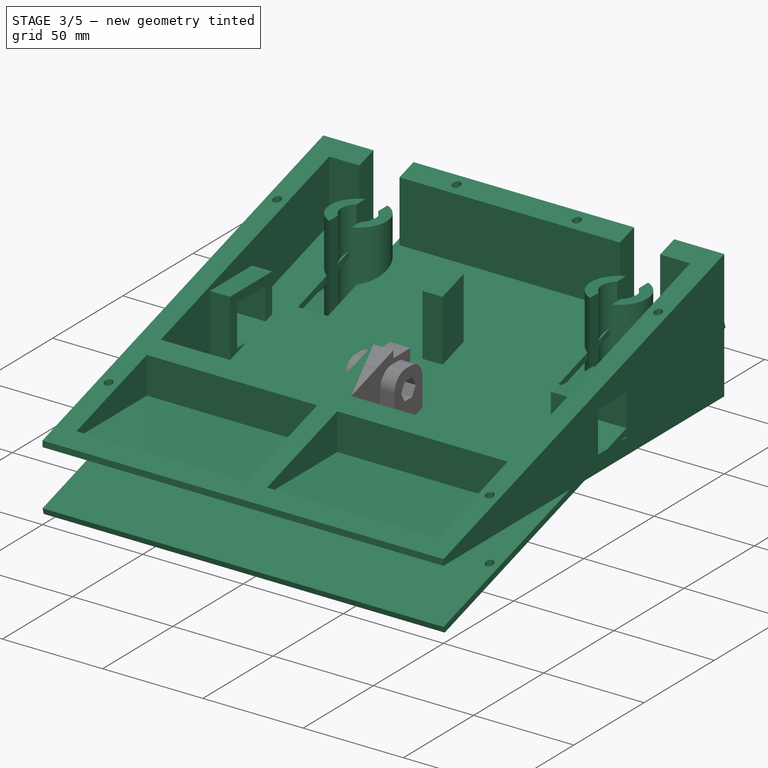
[diagram: stage 3 of 5 — iso view after this stage's code; geometry added in this stage tinted green]
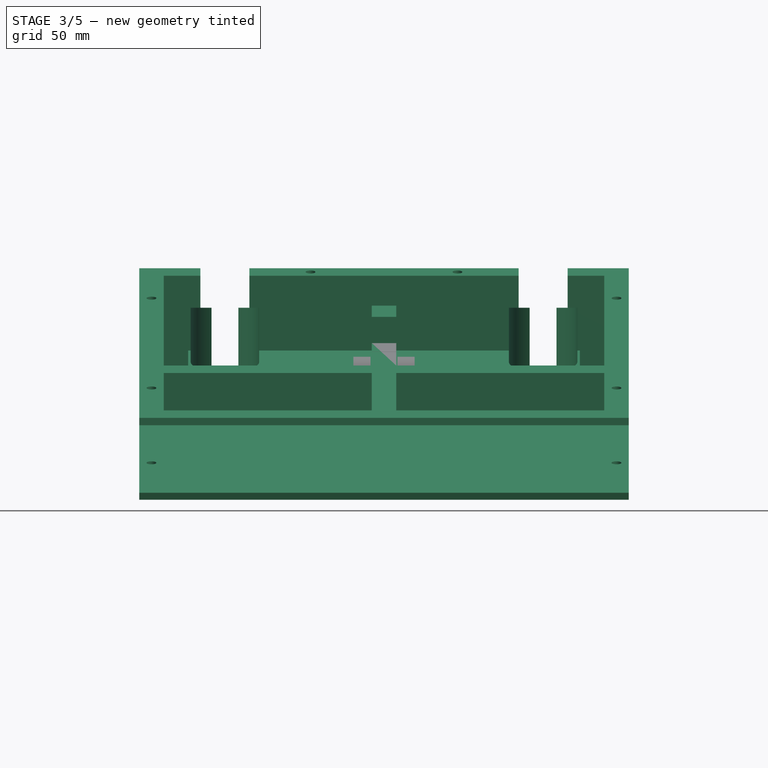
[diagram: stage 3 of 5 — front view after this stage's code; geometry added in this stage tinted green]
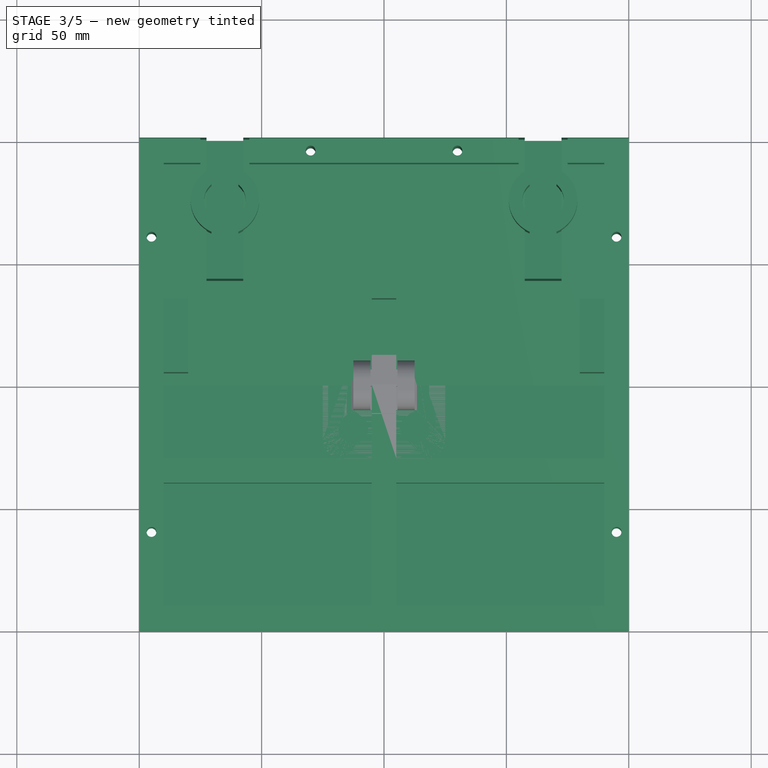
[diagram: stage 3 of 5 — top view after this stage's code; geometry added in this stage tinted green]
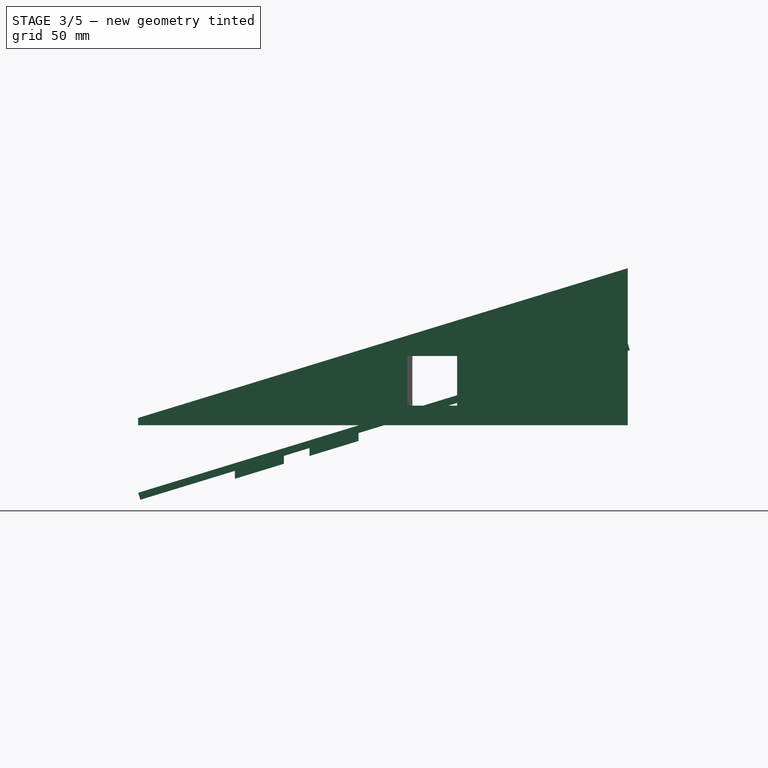
[diagram: stage 3 of 5 — right view after this stage's code; geometry added in this stage tinted green]
FEATURE [Sketcher::SketchObject] Sketch001  label="Wall"
  FullyConstrained = true
  MapMode = 5
  Placement = pos=(0,0,0) rot=(0.57735,0.57735,0.57735;2.0944rad)
  Support = -> [YZ_Plane]
  sketch-geometry (3):
    g0: LineSegment StartX=-100 StartY=0 StartZ=0 EndX=100 EndY=61.1461 EndZ=0
    g1: LineSegment StartX=100 StartY=61.1461 StartZ=0 EndX=100 EndY=0 EndZ=0
    g2: LineSegment StartX=100 StartY=0 StartZ=0 EndX=-100 EndY=0 EndZ=0
  constraints (9):
    c: Coincident(g0,g1)
    c: Vertical(g1)
    c: Coincident(g1,g2)
    c: Coincident(g2,g0)
    c: Horizontal(g2)
    c: Angle(g2,g0) = 0.296706
    c: DistanceX(g2,g2) = 200
    c: DistanceX(g0,g-1) = 100
    c: DistanceY(g0,g-1) = 0
FEATURE [Sketcher::SketchObject] Sketch  label="Bottom"
  FullyConstrained = true
  MapMode = 5
  Support = -> [XY_Plane]
  sketch-geometry (4):
    g0: LineSegment StartX=-100 StartY=100 StartZ=0 EndX=100 EndY=100 EndZ=0
    g1: LineSegment StartX=100 StartY=100 StartZ=0 EndX=100 EndY=-100 EndZ=0
    g2: LineSegment StartX=100 StartY=-100 StartZ=0 EndX=-100 EndY=-100 EndZ=0
    g3: LineSegment StartX=-100 StartY=-100 StartZ=0 EndX=-100 EndY=100 EndZ=0
  constraints (12):
    c: Coincident(g0,g1)
    c: Coincident(g1,g2)
    c: Coincident(g2,g3)
    c: Coincident(g3,g0)
    c: Horizontal(g0)
    c: Horizontal(g2)
    c: Vertical(g1)
    c: Vertical(g3)
    c: DistanceX(g2,g2) = 200
    c: DistanceY(g1,g1) = 200
    c: DistanceY(g-1,g0) = 100
    c: DistanceX(g-1,g0) = 100
FEATURE [PartDesign::Pad] Pad
  Direction = (1,1,1)
  Length = 3
  Length2 = 100
  Profile = -> Sketch
  Refine = true
  Reversed = true
  Type = 0
FEATURE [PartDesign::Pad] Pad001
  BaseFeature = -> Pad
  Direction = (1,1,1)
  Length = 200
  Length2 = 100
  Midplane = true
  Profile = -> Sketch001
  Refine = true
  Type = 0
FEATURE [Sketcher::SketchObject] Sketch003  label="PedalAxisHole"
  FullyConstrained = true
  MapMode = 5
  Placement = pos=(0,0,0) rot=(0.57735,0.57735,0.57735;2.0944rad)
  Support = -> [YZ_Plane]
  sketch-geometry (4):
    g0: LineSegment StartX=10 StartY=25.3 StartZ=0 EndX=30.3 EndY=25.3 EndZ=0
    g1: LineSegment StartX=30.3 StartY=25.3 StartZ=0 EndX=30.3 EndY=5 EndZ=0
    g2: LineSegment StartX=30.3 StartY=5 StartZ=0 EndX=10 EndY=5 EndZ=0
    g3: LineSegment StartX=10 StartY=5 StartZ=0 EndX=10 EndY=25.3 EndZ=0
  constraints (12):
    c: Coincident(g0,g1)
    c: Coincident(g1,g2)
    c: Coincident(g2,g3)
    c: Coincident(g3,g0)
    c: Horizontal(g0)
    c: Horizontal(g2)
    c: Vertical(g1)
    c: Vertical(g3)
    c: DistanceX(g0,g0) = 20.3
    c: DistanceY(g1,g1) = 20.3
    c: DistanceX(g-1,g0) = 10
    c: DistanceY(g-1,g2) = 5
FEATURE [Sketcher::SketchObject] Sketch002  label="HolderHole"
  FullyConstrained = true
  MapMode = 5
  Support = -> [XY_Plane]
  sketch-geometry (6):
    g0: Circle CenterX=-95 CenterY=60 CenterZ=0 NormalX=0 NormalY=0 NormalZ=1 AngleXU=0 Radius=2
    g1: Circle CenterX=-95 CenterY=-60 CenterZ=0 NormalX=0 NormalY=0 NormalZ=1 AngleXU=0 Radius=2
    g2: Circle CenterX=95 CenterY=-60 CenterZ=0 NormalX=0 NormalY=0 NormalZ=1 AngleXU=0 Radius=2
    g3: Circle CenterX=95 CenterY=60 CenterZ=0 NormalX=0 NormalY=0 NormalZ=1 AngleXU=0 Radius=2
    g4: Circle CenterX=-30 CenterY=95 CenterZ=0 NormalX=0 NormalY=0 NormalZ=1 AngleXU=0 Radius=2
    g5: Circle CenterX=30 CenterY=95 CenterZ=0 NormalX=0 NormalY=0 NormalZ=1 AngleXU=0 Radius=2
  constraints (18):
    c: DistanceX(g0,g3) = 190
    c: DistanceY(g3,g0) = 0
    c: DistanceY(g2,g1) = 0
    c: DistanceY(g1,g0) = 120
    c: DistanceX(g1,g2) = 190
    c: DistanceX(g0,g-1) = 95
    c: DistanceX(g0,g1) = 0
    c: Radius(g0) = 2
    c: Radius(g3) = 2
    c: Radius(g1) = 2
    c: Radius(g2) = 2
    c: DistanceY(g-1,g0) = 60
    c: DistanceX(g4,g5) = 60
    c: DistanceX(g4,g-1) = 30
    c: DistanceY(g-1,g4) = 95
    c: DistanceY(g5,g4) = 0
    c: Radius(g4) = 2
    c: Radius(g5) = 2
FEATURE [Sketcher::SketchObject] Sketch004
  FullyConstrained = true
  MapMode = 5
  Support = -> [XY_Plane]
  sketch-geometry (24):
    g0: LineSegment StartX=-90 StartY=90 StartZ=0 EndX=-75 EndY=90 EndZ=0
    g1: LineSegment StartX=-5 StartY=90 StartZ=0 EndX=-5 EndY=-30 EndZ=0
    g2: LineSegment StartX=-5 StartY=-30 StartZ=0 EndX=-90 EndY=-30 EndZ=0
    g3: LineSegment StartX=-90 StartY=-30 StartZ=0 EndX=-90 EndY=90 EndZ=0
    g4: LineSegment StartX=5 StartY=90 StartZ=0 EndX=55 EndY=90 EndZ=0
    g5: LineSegment StartX=90 StartY=90 StartZ=0 EndX=90 EndY=-30 EndZ=0
    g6: LineSegment StartX=90 StartY=-30 StartZ=0 EndX=5 EndY=-30 EndZ=0
    g7: LineSegment StartX=5 StartY=-30 StartZ=0 EndX=5 EndY=90 EndZ=0
    g8: LineSegment StartX=-55 StartY=90 StartZ=0 EndX=-55 EndY=100 EndZ=0
    g9: LineSegment StartX=-55 StartY=100 StartZ=0 EndX=-75 EndY=100 EndZ=0
    g10: LineSegment StartX=-75 StartY=100 StartZ=0 EndX=-75 EndY=90 EndZ=0
    g11: LineSegment StartX=75 StartY=90 StartZ=0 EndX=75 EndY=100 EndZ=0
    g12: LineSegment StartX=75 StartY=100 StartZ=0 EndX=55 EndY=100 EndZ=0
    g13: LineSegment StartX=55 StartY=100 StartZ=0 EndX=55 EndY=90 EndZ=0
    g14: LineSegment StartX=75 StartY=90 StartZ=0 EndX=90 EndY=90 EndZ=0
    g15: LineSegment StartX=-55 StartY=90 StartZ=0 EndX=-5 EndY=90 EndZ=0
    g16: LineSegment StartX=-90 StartY=-40 StartZ=0 EndX=-5 EndY=-40 EndZ=0
    g17: LineSegment StartX=-5 StartY=-40 StartZ=0 EndX=-5 EndY=-90 EndZ=0
    g18: LineSegment StartX=-5 StartY=-90 StartZ=0 EndX=-90 EndY=-90 EndZ=0
    g19: LineSegment StartX=-90 StartY=-90 StartZ=0 EndX=-90 EndY=-40 EndZ=0
    g20: LineSegment StartX=5 StartY=-40 StartZ=0 EndX=90 EndY=-40 EndZ=0
    g21: LineSegment StartX=90 StartY=-40 StartZ=0 EndX=90 EndY=-90 EndZ=0
    g22: LineSegment StartX=90 StartY=-90 StartZ=0 EndX=5 EndY=-90 EndZ=0
    g23: LineSegment StartX=5 StartY=-90 StartZ=0 EndX=5 EndY=-40 EndZ=0
  constraints (70):
    c: Coincident(g15,g1)
    c: Coincident(g1,g2)
    c: Coincident(g2,g3)
    c: Coincident(g3,g0)
    c: Horizontal(g0)
    c: Horizontal(g2)
    c: Vertical(g1)
    c: Vertical(g3)
    c: Coincident(g14,g5)
    c: Coincident(g5,g6)
    c: Coincident(g6,g7)
    c: Coincident(g7,g4)
    c: Horizontal(g4)
    c: Horizontal(g6)
    c: Vertical(g5)
    c: Vertical(g7)
    c: DistanceX(g0,g15) = 85
    c: DistanceX(g4,g14) = 85
    c: DistanceX(g0,g-1) = 90
    c: DistanceX(g-1,g14) = 90
    c: DistanceY(g-1,g0) = 90
    c: DistanceY(g3,g3) = 120
    c: DistanceY(g-1,g14) = 90
    c: DistanceY(g5,g5) = 120
    c: Coincident(g8,g9)
    c: Coincident(g9,g10)
    c: Horizontal(g9)
    c: Vertical(g8)
    c: Vertical(g10)
    c: Coincident(g11,g12)
    c: Coincident(g12,g13)
    c: Horizontal(g12)
    c: Vertical(g11)
    c: Vertical(g13)
    c: DistanceX(g9,g9) = 20
    c: DistanceX(g12,g12) = 20
    c: DistanceX(g8,g-1) = 55
    c: DistanceX(g-1,g12) = 55
    c: DistanceY(g-1,g8) = 100
    c: DistanceY(g-1,g12) = 100
    c: Coincident(g4,g13)
    c: Coincident(g14,g11)
    c: Tangent(g4,g14)
    c: Coincident(g0,g10)
    c: Coincident(g15,g8)
    c: Tangent(g0,g15)
    c: Coincident(g16,g17)
    c: Coincident(g17,g18)
    c: Coincident(g18,g19)
    c: Coincident(g19,g16)
    c: Horizontal(g16)
    c: Horizontal(g18)
    c: Vertical(g17)
    c: Vertical(g19)
    c: Coincident(g20,g21)
    c: Coincident(g21,g22)
    c: Coincident(g22,g23)
    c: Coincident(g23,g20)
    c: Horizontal(g20)
    c: Horizontal(g22)
    c: Vertical(g21)
    c: Vertical(g23)
    c: DistanceX(g16,g-1) = 90
    c: DistanceX(g-1,g20) = 90
    c: DistanceX(g16,g16) = 85
    c: DistanceX(g20,g20) = 85
    c: DistanceY(g18,g16) = 50
    c: DistanceY(g21,g20) = 50
    c: DistanceY(g16,g-1) = 40
    c: DistanceY(g20,g-1) = 40
FEATURE [PartDesign::Pocket] Pocket
  BaseFeature = -> Pad001
  Length = 200
  Length2 = 100
  Profile = -> Sketch004
  Refine = true
  Reversed = true
  Type = 0
FEATURE [Sketcher::SketchObject] Sketch005  label="HoleOuter"
  FullyConstrained = true
  MapMode = 5
  Placement = pos=(0,0,0) rot=(0.57735,0.57735,0.57735;2.0944rad)
  Support = -> [YZ_Plane]
  sketch-geometry (4):
    g0: LineSegment StartX=5 StartY=30 StartZ=0 EndX=35 EndY=30 EndZ=0
    g1: LineSegment StartX=35 StartY=30 StartZ=0 EndX=35 EndY=0 EndZ=0
    g2: LineSegment StartX=35 StartY=0 StartZ=0 EndX=5 EndY=0 EndZ=0
    g3: LineSegment StartX=5 StartY=0 StartZ=0 EndX=5 EndY=30 EndZ=0
  constraints (12):
    c: Coincident(g0,g1)
    c: Coincident(g1,g2)
    c: Coincident(g2,g3)
    c: Coincident(g3,g0)
    c: Horizontal(g0)
    c: Horizontal(g2)
    c: Vertical(g1)
    c: Vertical(g3)
    c: DistanceY(g2,g-1) = 0
    c: DistanceY(g3,g3) = 30
    c: DistanceX(g0,g0) = 30
    c: DistanceX(g-1,g0) = 5
FEATURE [Sketcher::SketchObject] Sketch006  label="Pocket1"
  FullyConstrained = true
  MapMode = 5
  Support = -> [XY_Plane]
  sketch-geometry (24):
    g0: LineSegment StartX=-80 StartY=35 StartZ=0 EndX=-48 EndY=35 EndZ=0
    g1: LineSegment StartX=-48 StartY=35 StartZ=0 EndX=-48 EndY=0 EndZ=0
    g2: LineSegment StartX=-48 StartY=-1.9e-15 StartZ=0 EndX=-80 EndY=-1.9e-15 EndZ=0
    g3: LineSegment StartX=-80 StartY=-1.9e-15 StartZ=0 EndX=-80 EndY=35 EndZ=0
    g4: LineSegment StartX=48 StartY=35 StartZ=0 EndX=80 EndY=35 EndZ=0
    g5: LineSegment StartX=80 StartY=35 StartZ=0 EndX=80 EndY=0 EndZ=0
    g6: LineSegment StartX=80 StartY=0 StartZ=0 EndX=48 EndY=0 EndZ=0
    g7: LineSegment StartX=48 StartY=0 StartZ=0 EndX=48 EndY=35 EndZ=0
    g8: LineSegment StartX=-25 StartY=90 StartZ=0 EndX=25 EndY=90 EndZ=0
    g9: LineSegment StartX=25 StartY=90 StartZ=0 EndX=25 EndY=50 EndZ=0
    g10: LineSegment StartX=25 StartY=50 StartZ=0 EndX=-25 EndY=50 EndZ=0
    g11: LineSegment StartX=-25 StartY=50 StartZ=0 EndX=-25 EndY=90 EndZ=0
    g12: LineSegment StartX=-40 StartY=35 StartZ=0 EndX=40 EndY=35 EndZ=0
    g13: LineSegment StartX=40 StartY=35 StartZ=0 EndX=40 EndY=0 EndZ=0
    g14: LineSegment StartX=40 StartY=0 StartZ=0 EndX=-40 EndY=0 EndZ=0
    g15: LineSegment StartX=-40 StartY=0 StartZ=0 EndX=-40 EndY=35 EndZ=0
    g16: LineSegment StartX=40 StartY=35 StartZ=0 EndX=48 EndY=35 EndZ=0
    g17: LineSegment StartX=48 StartY=35 StartZ=0 EndX=48 EndY=5 EndZ=0
    g18: LineSegment StartX=48 StartY=5 StartZ=0 EndX=40 EndY=5 EndZ=0
    g19: LineSegment StartX=40 StartY=5 StartZ=0 EndX=40 EndY=35 EndZ=0
    g20: LineSegment StartX=-48 StartY=35 StartZ=0 EndX=-40 EndY=35 EndZ=0
    g21: LineSegment StartX=-40 StartY=35 StartZ=0 EndX=-40 EndY=5 EndZ=0
    g22: LineSegment StartX=-40 StartY=5 StartZ=0 EndX=-48 EndY=5 EndZ=0
    g23: LineSegment StartX=-48 StartY=5 StartZ=0 EndX=-48 EndY=35 EndZ=0
  constraints (70):
    c: Coincident(g0,g1)
    c: Coincident(g1,g2)
    c: Coincident(g2,g3)
    c: Coincident(g3,g0)
    c: Horizontal(g0)
    c: Horizontal(g2)
    c: Vertical(g1)
    c: Vertical(g3)
    c: DistanceX(g0,g0) = 32
    c: DistanceX(g0,g-1) = 80
    c: DistanceY(g3,g3) = 35
    c: DistanceY(g-1,g0) = 35
    c: Coincident(g4,g5)
    c: Coincident(g5,g6)
    c: Coincident(g6,g7)
    c: Coincident(g7,g4)
    c: Horizontal(g4)
    c: Horizontal(g6)
    c: Vertical(g5)
    c: Vertical(g7)
    c: DistanceX(g4,g4) = 32
    c: DistanceY(g5,g5) = 35
    c: DistanceY(g-1,g4) = 35
    c: DistanceX(g-1,g4) = 80
    c: Coincident(g8,g9)
    c: Coincident(g9,g10)
    c: Coincident(g10,g11)
    c: Coincident(g11,g8)
    c: Horizontal(g8)
    c: Horizontal(g10)
    c: Vertical(g9)
    c: Vertical(g11)
    c: DistanceX(g8,g8) = 50
    c: DistanceX(g8,g-1) = 25
    c: DistanceY(g9,g9) = 40
    c: DistanceY(g-1,g8) = 90
    c: Coincident(g12,g13)
    c: Coincident(g13,g14)
    c: Coincident(g14,g15)
    c: Coincident(g15,g12)
    c: Horizontal(g12)
    c: Horizontal(g14)
    c: Vertical(g13)
    c: Vertical(g15)
    c: PointOnObject(g13,g-1)
    c: DistanceX(g12,g12) = 80
    c: DistanceY(g15,g15) = 35
    c: DistanceX(g12,g-1) = 40
    c: Coincident(g16,g17)
    c: Coincident(g17,g18)
    c: Coincident(g18,g19)
    c: Coincident(g19,g16)
    c: Horizontal(g16)
    c: Horizontal(g18)
    c: Vertical(g17)
    c: Vertical(g19)
    c: Coincident(g16,g12)
    c: PointOnObject(g17,g7)
    c: DistanceY(g18,g12) = 30
    c: Coincident(g20,g21)
    c: Coincident(g21,g22)
    c: Coincident(g22,g23)
    c: Coincident(g23,g20)
    c: Horizontal(g20)
    c: Horizontal(g22)
    c: Vertical(g21)
    c: Vertical(g23)
    c: Coincident(g20,g0)
    c: PointOnObject(g21,g15)
    c: DistanceY(g22,g0) = 30
FEATURE [Sketcher::SketchObject] Sketch007  label="SpringHolder"
  FullyConstrained = true
  MapMode = 5
  Support = -> [XY_Plane]
  sketch-geometry (16):
    g0: ArcOfCircle CenterX=-65 CenterY=75 CenterZ=0 NormalX=0 NormalY=0 NormalZ=1 AngleXU=0 Radius=8.5 StartAngle=2.27318 EndAngle=4.01001
    g1: ArcOfCircle CenterX=-65 CenterY=75 CenterZ=0 NormalX=0 NormalY=0 NormalZ=1 AngleXU=0 Radius=14 StartAngle=1.97386 EndAngle=4.30933
    g2: LineSegment StartX=-59.5087 StartY=87.8781 StartZ=0 EndX=-59.5087 EndY=81.4881 EndZ=0
    g3: LineSegment StartX=-70.4913 StartY=62.1219 StartZ=0 EndX=-70.4913 EndY=68.5119 EndZ=0
    g4: LineSegment StartX=-70.4913 StartY=81.4881 StartZ=0 EndX=-70.4913 EndY=87.8781 EndZ=0
    g5: LineSegment StartX=-59.5087 StartY=68.5119 StartZ=0 EndX=-59.5087 EndY=62.1219 EndZ=0
    g6: ArcOfCircle CenterX=-65 CenterY=75 CenterZ=0 NormalX=0 NormalY=0 NormalZ=1 AngleXU=0 Radius=8.5 StartAngle=5.41477 EndAngle=7.1516
    g7: ArcOfCircle CenterX=-65 CenterY=75 CenterZ=0 NormalX=0 NormalY=0 NormalZ=1 AngleXU=0 Radius=14 StartAngle=5.11545 EndAngle=7.45092
    g8: ArcOfCircle CenterX=65 CenterY=75 CenterZ=0 NormalX=0 NormalY=0 NormalZ=1 AngleXU=0 Radius=8.5 StartAngle=5.41477 EndAngle=7.1516
    g9: ArcOfCircle CenterX=65 CenterY=75 CenterZ=0 NormalX=0 NormalY=0 NormalZ=1 AngleXU=0 Radius=14 StartAngle=5.11545 EndAngle=7.45092
    g10: LineSegment StartX=70.4913 StartY=87.8781 StartZ=0 EndX=70.4913 EndY=81.4881 EndZ=0
    g11: LineSegment StartX=59.5087 StartY=62.1219 StartZ=0 EndX=59.5087 EndY=68.5119 EndZ=0
    g12: LineSegment StartX=59.5087 StartY=81.4881 StartZ=0 EndX=59.5087 EndY=87.8781 EndZ=0
    g13: LineSegment StartX=70.4913 StartY=68.5119 StartZ=0 EndX=70.4913 EndY=62.1219 EndZ=0
    g14: ArcOfCircle CenterX=65 CenterY=75 CenterZ=0 NormalX=0 NormalY=0 NormalZ=1 AngleXU=0 Radius=8.5 StartAngle=2.27318 EndAngle=4.01001
    g15: ArcOfCircle CenterX=65 CenterY=75 CenterZ=0 NormalX=0 NormalY=0 NormalZ=1 AngleXU=0 Radius=14 StartAngle=1.97386 EndAngle=4.30933
  constraints (47):
    c: Radius(g0) = 8.5
    c: Coincident(g1,g0)
    c: Radius(g1) = 14
    c: Vertical(g2)
    c: Vertical(g3)
    c: DistanceX(g0,g-1) = 65
    c: DistanceY(g-1,g0) = 75
    c: Tangent(g3,g4)
    c: Tangent(g2,g5)
    c: Coincident(g0,g4)
    c: Coincident(g6,g2)
    c: Coincident(g4,g1)
    c: Coincident(g2,g7)
    c: Equal(g0,g6)
    c: Coincident(g0,g3)
    c: Coincident(g6,g5)
    c: Coincident(g0,g6)
    c: Equal(g1,g7)
    c: Coincident(g1,g7)
    c: Coincident(g5,g7)
    c: Coincident(g3,g1)
    c: DistanceY(g2,g2) = 6.39
    c: DistanceY(g4,g4) = 6.39
    c: Coincident(g9,g8)
    c: Radius(g8) = 8.5
    c: Radius(g9) = 14
    c: Vertical(g10)
    c: Vertical(g11)
    c: DistanceX(g-1,g8) = 65
    c: DistanceY(g-1,g8) = 75
    c: Tangent(g11,g12)
    c: Coincident(g14,g11)
    c: PointOnObject(g9,g10)
    c: Coincident(g13,g8)
    c: Tangent(g10,g13)
    c: Equal(g8,g14)
    c: Coincident(g8,g10)
    c: Coincident(g14,g12)
    c: Coincident(g8,g14)
    c: Equal(g9,g15)
    c: Coincident(g9,g15)
    c: Coincident(g12,g15)
    c: Coincident(g10,g9)
    c: Coincident(g11,g15)
    c: PointOnObject(g13,g9)
    c: DistanceY(g10,g10) = 6.39
    c: DistanceY(g12,g12) = 6.39
FEATURE [PartDesign::Pad] Pad002
  BaseFeature = -> Pocket
  Direction = (1,1,1)
  Length = 45
  Length2 = 100
  Profile = -> Sketch007
  Refine = true
  Type = 0
FEATURE [PartDesign::Pad] Pad003
  BaseFeature = -> Pad002
  Direction = (1,1,1)
  Length = 200
  Length2 = 100
  Midplane = true
  Profile = -> Sketch005
  Refine = true
  Type = 0
FEATURE [PartDesign::Pocket] Pocket001
  BaseFeature = -> Pad003
  Length = 200
  Length2 = 100
  Profile = -> Sketch006
  Refine = true
  Reversed = true
  Type = 0
FEATURE [PartDesign::Pocket] Pocket002
  BaseFeature = -> Pocket001
  Length = 500
  Length2 = 100
  Midplane = true
  Profile = -> Sketch003
  Refine = true
  Type = 0
FEATURE [Sketcher::SketchObject] Sketch012  label="Encoder_Placer"
  FullyConstrained = true
  MapMode = 5
  Support = -> [XY_Plane]
  sketch-geometry (8):
    g0: LineSegment StartX=30 StartY=50 StartZ=0 EndX=40 EndY=50 EndZ=0
    g1: LineSegment StartX=40 StartY=50 StartZ=0 EndX=40 EndY=30 EndZ=0
    g2: LineSegment StartX=40 StartY=30 StartZ=0 EndX=30 EndY=30 EndZ=0
    g3: LineSegment StartX=30 StartY=30 StartZ=0 EndX=30 EndY=50 EndZ=0
    g4: LineSegment StartX=-30 StartY=50 StartZ=0 EndX=-40 EndY=50 EndZ=0
    g5: LineSegment StartX=-40 StartY=50 StartZ=0 EndX=-40 EndY=30 EndZ=0
    g6: LineSegment StartX=-40 StartY=30 StartZ=0 EndX=-30 EndY=30 EndZ=0
    g7: LineSegment StartX=-30 StartY=30 StartZ=0 EndX=-30 EndY=50 EndZ=0
  constraints (24):
    c: Coincident(g0,g1)
    c: Coincident(g1,g2)
    c: Coincident(g2,g3)
    c: Coincident(g3,g0)
    c: Horizontal(g0)
    c: Horizontal(g2)
    c: Vertical(g1)
    c: Vertical(g3)
    c: Coincident(g4,g5)
    c: Coincident(g5,g6)
    c: Coincident(g6,g7)
    c: Coincident(g7,g4)
    c: Horizontal(g4)
    c: Horizontal(g6)
    c: Vertical(g5)
    c: Vertical(g7)
    c: DistanceX(g0,g0) = 10
    c: DistanceX(g4,g4) = 10
    c: DistanceX(g4,g-1) = 30
    c: DistanceX(g-1,g2) = 30
    c: DistanceY(g5,g5) = 20
    c: DistanceY(g1,g1) = 20
    c: DistanceY(g-1,g2) = 30
    c: DistanceY(g-1,g6) = 30
FEATURE [Sketcher::SketchObject] Sketch011  label="ArduinoMount"
  AttachmentOffset = pos=(0,0,-90) rot=(0,0,1;0rad)
  FullyConstrained = true
  MapMode = 5
  Placement = pos=(0,90,2e-14) rot=(1,0,0;1.5708rad)
  Support = -> [XZ_Plane]
  sketch-geometry (4):
    g0: LineSegment StartX=-36 StartY=57 StartZ=0 EndX=36 EndY=57 EndZ=0
    g1: LineSegment StartX=36 StartY=57 StartZ=0 EndX=36 EndY=0 EndZ=0
    g2: LineSegment StartX=36 StartY=0 StartZ=0 EndX=-36 EndY=0 EndZ=0
    g3: LineSegment StartX=-36 StartY=0 StartZ=0 EndX=-36 EndY=57 EndZ=0
  constraints (12):
    c: Coincident(g0,g1)
    c: Coincident(g1,g2)
    c: Coincident(g2,g3)
    c: Coincident(g3,g0)
    c: Horizontal(g0)
    c: Horizontal(g2)
    c: Vertical(g1)
    c: Vertical(g3)
    c: DistanceX(g0,g0) = 72
    c: DistanceY(g1,g1) = 57
    c: DistanceX(g2,g-1) = 36
    c: DistanceY(g-1,g2) = 0
FEATURE [Sketcher::SketchObject] Sketch013  label="Arduino_Mountinghole"
  AttachmentOffset = pos=(0,0,-100) rot=(0,0,1;0rad)
  FullyConstrained = true
  MapMode = 5
  Placement = pos=(0,100,2.22e-14) rot=(1,0,0;1.5708rad)
  Support = -> [XZ_Plane]
  sketch-geometry (4):
    g0: Circle CenterX=-19 CenterY=52.2 CenterZ=0 NormalX=0 NormalY=0 NormalZ=1 AngleXU=0 Radius=1.6
    g1: Circle CenterX=31.8 CenterY=37 CenterZ=0 NormalX=0 NormalY=0 NormalZ=1 AngleXU=0 Radius=1.6
    g2: Circle CenterX=-20.3 CenterY=4 CenterZ=0 NormalX=0 NormalY=0 NormalZ=1 AngleXU=0 Radius=1.6
    g3: Circle CenterX=31.8 CenterY=9.1 CenterZ=0 NormalX=0 NormalY=0 NormalZ=1 AngleXU=0 Radius=1.6
  constraints (12):
    c: DistanceX(g0,g1) = 50.8
    c: DistanceY(g3,g1) = 27.9
    c: DistanceY(g1,g0) = 15.2
    c: DistanceY(g2,g3) = 5.1
    c: Radius(g0) = 1.6
    c: Radius(g1) = 1.6
    c: Radius(g3) = 1.6
    c: Radius(g2) = 1.6
    c: DistanceY(g-1,g2) = 4
    c: DistanceX(g0,g2) = -1.3
    c: DistanceX(g0,g-1) = 19
    c: DistanceX(g0,g3) = 50.8
FEATURE [Sketcher::SketchObject] Sketch014  label="Wire_Hole"
  AttachmentOffset = pos=(0,0,-100) rot=(0,0,1;0rad)
  FullyConstrained = true
  MapMode = 5
  Placement = pos=(0,100,2.22e-14) rot=(1,0,0;1.5708rad)
  Support = -> [XZ_Plane]
  sketch-geometry (12):
    g0: LineSegment StartX=-50 StartY=30 StartZ=0 EndX=-40 EndY=30 EndZ=0
    g1: LineSegment StartX=-40 StartY=30 StartZ=0 EndX=-40 EndY=20 EndZ=0
    g2: LineSegment StartX=-40 StartY=20 StartZ=0 EndX=-50 EndY=20 EndZ=0
    g3: LineSegment StartX=-50 StartY=20 StartZ=0 EndX=-50 EndY=30 EndZ=0
    g4: LineSegment StartX=-52 StartY=7 StartZ=0 EndX=-49 EndY=7 EndZ=0
    g5: LineSegment StartX=-38 StartY=7 StartZ=0 EndX=-38 EndY=5 EndZ=0
    g6: LineSegment StartX=-38 StartY=5 StartZ=0 EndX=-52 EndY=5 EndZ=0
    g7: LineSegment StartX=-52 StartY=5 StartZ=0 EndX=-52 EndY=7 EndZ=0
    g8: LineSegment StartX=-49 StartY=9 StartZ=0 EndX=-41 EndY=9 EndZ=0
    g9: LineSegment StartX=-41 StartY=9 StartZ=0 EndX=-41 EndY=7 EndZ=0
    g10: LineSegment StartX=-49 StartY=7 StartZ=0 EndX=-49 EndY=9 EndZ=0
    g11: LineSegment StartX=-41 StartY=7 StartZ=0 EndX=-38 EndY=7 EndZ=0
  constraints (35):
    c: Coincident(g0,g1)
    c: Coincident(g1,g2)
    c: Coincident(g2,g3)
    c: Coincident(g3,g0)
    c: Horizontal(g0)
    c: Horizontal(g2)
    c: Vertical(g1)
    c: Vertical(g3)
    c: DistanceX(g0,g0) = 10
    c: DistanceY(g1,g1) = 10
    c: DistanceX(g1,g-1) = 40
    c: DistanceY(g-1,g1) = 20
    c: Coincident(g11,g5)
    c: Coincident(g5,g6)
    c: Coincident(g6,g7)
    c: Coincident(g7,g4)
    c: Horizontal(g4)
    c: Horizontal(g6)
    c: Vertical(g5)
    c: Vertical(g7)
    c: DistanceY(g7,g7) = 2
    c: DistanceX(g4,g11) = 14
    c: Coincident(g8,g9)
    c: Coincident(g10,g8)
    c: Horizontal(g8)
    c: Vertical(g9)
    c: Vertical(g10)
    c: Tangent(g4,g11)
    c: Coincident(g9,g11)
    c: Coincident(g10,g4)
    c: DistanceY(g10,g10) = 2
    c: DistanceX(g8,g8) = 8
    c: DistanceX(g4,g4) = 3
    c: DistanceX(g5,g-1) = 38
    c: DistanceY(g-1,g5) = 5
FEATURE [PartDesign::Pocket] Pocket003
  BaseFeature = -> Pocket002
  Length = 1
  Length2 = 100
  Profile = -> Sketch012
  Refine = true
  Type = 0
FEATURE [PartDesign::Pocket] Pocket004
  BaseFeature = -> Pocket003
  Length = 500
  Length2 = 100
  Midplane = true
  Profile = -> Sketch002
  Refine = true
  Type = 0
FEATURE [PartDesign::Body] Body  label="Frame"
  Group = -> [Sketch,Sketch001,Sketch002,Sketch003,Sketch004,Sketch005,Sketch006,Sketch007,Sketch011,Sketch012,Pad,Pad001,Pocket,Pad002,Pad003,Pocket001,Pocket002,Pocket003,Pocket004,Pocket005,Sketch013,Pocket006,Sketch014,Pocket007,Sketch015,Pocket008,Sketch016,Pocket009,Chamfer]
  Origin = -> Origin
  Tip = -> Chamfer
FEATURE [Sketcher::SketchObject] Sketch060  label="Holder"
  FullyConstrained = true
  MapMode = 5
  Support = -> [XY_Plane012]
  sketch-geometry (16):
    g0: LineSegment StartX=-89.5 StartY=-40.5 StartZ=0 EndX=-5.5 EndY=-40.5 EndZ=0
    g1: LineSegment StartX=-5.5 StartY=-40.5 StartZ=0 EndX=-5.5 EndY=-60.5 EndZ=0
    g2: LineSegment StartX=-5.5 StartY=-60.5 StartZ=0 EndX=-89.5 EndY=-60.5 EndZ=0
    g3: LineSegment StartX=-89.5 StartY=-60.5 StartZ=0 EndX=-89.5 EndY=-40.5 EndZ=0
    g4: LineSegment StartX=5.5 StartY=-40.5 StartZ=0 EndX=89.5 EndY=-40.5 EndZ=0
    g5: LineSegment StartX=89.5 StartY=-40.5 StartZ=0 EndX=89.5 EndY=-60.5 EndZ=0
    g6: LineSegment StartX=89.5 StartY=-60.5 StartZ=0 EndX=5.5 EndY=-60.5 EndZ=0
    g7: LineSegment StartX=5.5 StartY=-60.5 StartZ=0 EndX=5.5 EndY=-40.5 EndZ=0
    g8: LineSegment StartX=-89.5 StartY=-10 StartZ=0 EndX=-5.5 EndY=-10 EndZ=0
    g9: LineSegment StartX=-5.5 StartY=-10 StartZ=0 EndX=-5.5 EndY=-30 EndZ=0
    g10: LineSegment StartX=-5.5 StartY=-30 StartZ=0 EndX=-89.5 EndY=-30 EndZ=0
    g11: LineSegment StartX=-89.5 StartY=-30 StartZ=0 EndX=-89.5 EndY=-10 EndZ=0
    g12: LineSegment StartX=5.5 StartY=-10 StartZ=0 EndX=89.5 EndY=-10 EndZ=0
    g13: LineSegment StartX=89.5 StartY=-10 StartZ=0 EndX=89.5 EndY=-30 EndZ=0
    g14: LineSegment StartX=89.5 StartY=-30 StartZ=0 EndX=5.5 EndY=-30 EndZ=0
    g15: LineSegment StartX=5.5 StartY=-30 StartZ=0 EndX=5.5 EndY=-10 EndZ=0
  constraints (48):
    c: Coincident(g0,g1)
    c: Coincident(g1,g2)
    c: Coincident(g2,g3)
    c: Coincident(g3,g0)
    c: Horizontal(g0)
    c: Horizontal(g2)
    c: Vertical(g1)
    c: Vertical(g3)
    c: Coincident(g4,g5)
    c: Coincident(g5,g6)
    c: Coincident(g6,g7)
    c: Coincident(g7,g4)
    c: Horizontal(g4)
    c: Horizontal(g6)
    c: Vertical(g5)
    c: Vertical(g7)
    c: Coincident(g8,g9)
    c: Coincident(g9,g10)
    c: Coincident(g10,g11)
    c: Coincident(g11,g8)
    c: Horizontal(g8)
    c: Horizontal(g10)
    c: Vertical(g9)
    c: Vertical(g11)
    c: Coincident(g12,g13)
    c: Coincident(g13,g14)
    c: Coincident(g14,g15)
    c: Coincident(g15,g12)
    c: Horizontal(g12)
    c: Horizontal(g14)
    c: Vertical(g13)
    c: Vertical(g15)
    c: DistanceX(g0,g0) = 84
    c: DistanceX(g4,g4) = 84
    c: DistanceX(g0,g-1) = 89.5
    c: DistanceX(g-1,g4) = 89.5
    c: DistanceY(g0,g-1) = 40.5
    c: DistanceY(g4,g-1) = 40.5
    c: DistanceY(g5,g5) = 20
    c: DistanceY(g3,g3) = 20
    c: DistanceX(g8,g8) = 84
    c: DistanceX(g12,g12) = 84
    c: DistanceY(g-1,g14) = -30
    c: DistanceY(g-1,g9) = -30
    c: DistanceY(g13,g13) = 20
    c: DistanceY(g11,g11) = 20
    c: DistanceX(g8,g-1) = 5.5
    c: DistanceX(g-1,g14) = 5.5
FEATURE [Sketcher::SketchObject] Sketch061
  FullyConstrained = true
  MapMode = 5
  Placement = pos=(0,0,0) rot=(0.57735,0.57735,0.57735;2.0944rad)
  Support = -> [YZ_Plane012]
  sketch-geometry (8):
    g0: LineSegment StartX=-110 StartY=-33.6304 StartZ=0 EndX=130 EndY=39.745 EndZ=0
    g1: LineSegment StartX=130 StartY=39.745 StartZ=0 EndX=130 EndY=89.745 EndZ=0
    g2: LineSegment StartX=130 StartY=89.745 StartZ=0 EndX=-110 EndY=16.3696 EndZ=0
    g3: LineSegment StartX=-110 StartY=16.3696 StartZ=0 EndX=-110 EndY=-33.6304 EndZ=0
    g4: LineSegment StartX=-110 StartY=-40 StartZ=0 EndX=130 EndY=33.3754 EndZ=0
    g5: LineSegment StartX=130 StartY=33.3754 StartZ=0 EndX=130 EndY=-16.6246 EndZ=0
    g6: LineSegment StartX=130 StartY=-16.6246 StartZ=0 EndX=-110 EndY=-90 EndZ=0
    g7: LineSegment StartX=-110 StartY=-90 StartZ=0 EndX=-110 EndY=-40 EndZ=0
  constraints (24):
    c: Coincident(g0,g1)
    c: Vertical(g1)
    c: Coincident(g1,g2)
    c: Coincident(g2,g3)
    c: Coincident(g3,g0)
    c: Vertical(g3)
    c: Angle(g-1,g0) = 0.296706
    c: PointOnObject(g-1,g0)
    c: DistanceY(g1,g1) = 50
    c: DistanceY(g3,g3) = 50
    c: DistanceX(g2,g2) = 240
    c: DistanceX(g2,g-1) = 110
    c: Coincident(g4,g5)
    c: Vertical(g5)
    c: Coincident(g5,g6)
    c: Coincident(g6,g7)
    c: Coincident(g7,g4)
    c: Vertical(g7)
    c: Angle(g-1,g4) = 0.296706
    c: DistanceY(g5,g5) = 50
    c: DistanceY(g4,g-1) = 40
    c: DistanceY(g7,g7) = 50
    c: DistanceX(g6,g6) = 240
    c: DistanceX(g4,g-1) = 110
FEATURE [Sketcher::SketchObject] Sketch062  label="Holes"
  FullyConstrained = true
  MapMode = 5
  Support = -> [XY_Plane012]
  sketch-geometry (6):
    g0: Circle CenterX=-95 CenterY=60 CenterZ=0 NormalX=0 NormalY=0 NormalZ=1 AngleXU=0 Radius=2
    g1: Circle CenterX=-95 CenterY=-60 CenterZ=0 NormalX=0 NormalY=0 NormalZ=1 AngleXU=0 Radius=2
    g2: Circle CenterX=95 CenterY=-60 CenterZ=0 NormalX=0 NormalY=0 NormalZ=1 AngleXU=0 Radius=2
    g3: Circle CenterX=95 CenterY=60 CenterZ=0 NormalX=0 NormalY=0 NormalZ=1 AngleXU=0 Radius=2
    g4: Circle CenterX=-30 CenterY=95 CenterZ=0 NormalX=0 NormalY=0 NormalZ=1 AngleXU=0 Radius=2
    g5: Circle CenterX=30 CenterY=95 CenterZ=0 NormalX=0 NormalY=0 NormalZ=1 AngleXU=0 Radius=2
  constraints (18):
    c: Radius(g4) = 2
    c: Radius(g5) = 2
    c: Radius(g3) = 2
    c: Radius(g2) = 2
    c: Radius(g1) = 2
    c: Radius(g0) = 2
    c: DistanceY(g1,g0) = 120
    c: DistanceX(g1,g2) = 190
    c: DistanceX(g0,g3) = 190
    c: DistanceX(g1,g0) = 0
    c: DistanceX(g0,g-1) = 95
    c: DistanceX(g4,g5) = 60
    c: DistanceY(g-1,g4) = 95
    c: DistanceY(g5,g4) = 0
    c: DistanceX(g4,g-1) = 30
    c: DistanceY(g-1,g0) = 60
    c: DistanceY(g0,g3) = 0
    c: DistanceY(g1,g2) = 0
FEATURE [Sketcher::SketchObject] Sketch063  label="Plate"
  AttachmentOffset = pos=(0,0,0) rot=(1,0,0;0.296706rad)
  FullyConstrained = true
  MapMode = 5
  Placement = pos=(0,0,0) rot=(1,0,0;0.296706rad)
  Support = -> [XY_Plane012]
  sketch-geometry (12):
    g0: LineSegment StartX=-100 StartY=104.55 StartZ=0 EndX=-72.5 EndY=104.55 EndZ=0
    g1: LineSegment StartX=100 StartY=104.55 StartZ=0 EndX=100 EndY=-104.55 EndZ=0
    g2: LineSegment StartX=100 StartY=-104.55 StartZ=0 EndX=-100 EndY=-104.55 EndZ=0
    g3: LineSegment StartX=-100 StartY=-104.55 StartZ=0 EndX=-100 EndY=104.55 EndZ=0
    g4: LineSegment StartX=-57.5 StartY=104.55 StartZ=0 EndX=-57.5 EndY=44.55 EndZ=0
    g5: LineSegment StartX=-57.5 StartY=44.55 StartZ=0 EndX=-72.5 EndY=44.55 EndZ=0
    g6: LineSegment StartX=-72.5 StartY=44.55 StartZ=0 EndX=-72.5 EndY=104.55 EndZ=0
    g7: LineSegment StartX=72.5 StartY=104.55 StartZ=0 EndX=72.5 EndY=44.55 EndZ=0
    g8: LineSegment StartX=72.5 StartY=44.55 StartZ=0 EndX=57.5 EndY=44.55 EndZ=0
    g9: LineSegment StartX=57.5 StartY=44.55 StartZ=0 EndX=57.5 EndY=104.55 EndZ=0
    g10: LineSegment StartX=-57.5 StartY=104.55 StartZ=0 EndX=57.5 EndY=104.55 EndZ=0
    g11: LineSegment StartX=72.5 StartY=104.55 StartZ=0 EndX=100 EndY=104.55 EndZ=0
  constraints (34):
    c: Coincident(g11,g1)
    c: Coincident(g1,g2)
    c: Coincident(g2,g3)
    c: Coincident(g3,g0)
    c: Horizontal(g0)
    c: Horizontal(g2)
    c: Vertical(g1)
    c: Vertical(g3)
    c: DistanceX(g2,g2) = 200
    c: DistanceX(g2,g-1) = 100
    c: DistanceY(g1,g1) = 209.1
    c: DistanceY(g2,g-1) = 104.55
    c: Coincident(g4,g5)
    c: Coincident(g5,g6)
    c: Horizontal(g5)
    c: Vertical(g4)
    c: Vertical(g6)
    c: Coincident(g7,g8)
    c: Coincident(g8,g9)
    c: Horizontal(g8)
    c: Vertical(g7)
    c: Vertical(g9)
    c: DistanceX(g5,g5) = 15
    c: DistanceX(g8,g8) = 15
    c: DistanceX(g0,g5) = 27.5
    c: DistanceX(g7,g11) = 27.5
    c: DistanceY(g5,g0) = 60
    c: DistanceY(g7,g11) = 60
    c: Tangent(g0,g10)
    c: Tangent(g10,g11)
    c: Coincident(g9,g10)
    c: Coincident(g7,g11)
    c: Coincident(g4,g10)
    c: Coincident(g6,g0)
FEATURE [PartDesign::Pad] Pad032
  Direction = (1,1,1)
  Length = 3
  Length2 = 100
  Profile = -> Sketch063
  Refine = true
  Reversed = true
  Type = 0
FEATURE [PartDesign::Pad] Pad031
  BaseFeature = -> Pad032
  Direction = (1,1,1)
  Length = 60
  Length2 = 100
  Midplane = true
  Profile = -> Sketch060
  Refine = true
  Type = 0
FEATURE [PartDesign::Pocket] Pocket023
  BaseFeature = -> Pad031
  Length = 500
  Length2 = 100
  Midplane = true
  Profile = -> Sketch062
  Refine = true
  Type = 0
FEATURE [PartDesign::Pocket] Pocket022
  BaseFeature = -> Pocket023
  Length = 500
  Length2 = 100
  Midplane = true
  Profile = -> Sketch061
  Refine = true
  Reversed = true
  Type = 0
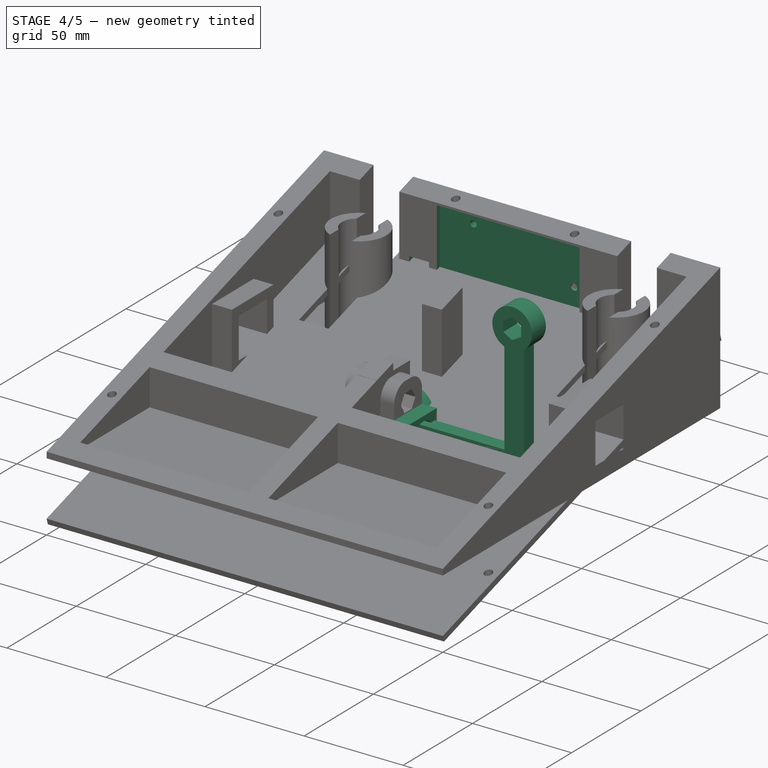
[diagram: stage 4 of 5 — iso view after this stage's code; geometry added in this stage tinted green]
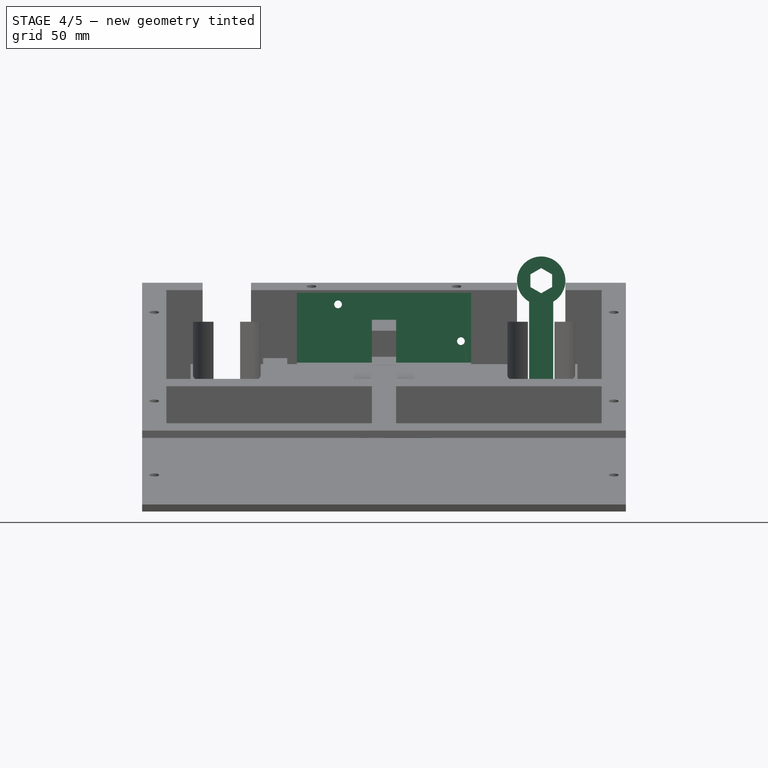
[diagram: stage 4 of 5 — front view after this stage's code; geometry added in this stage tinted green]
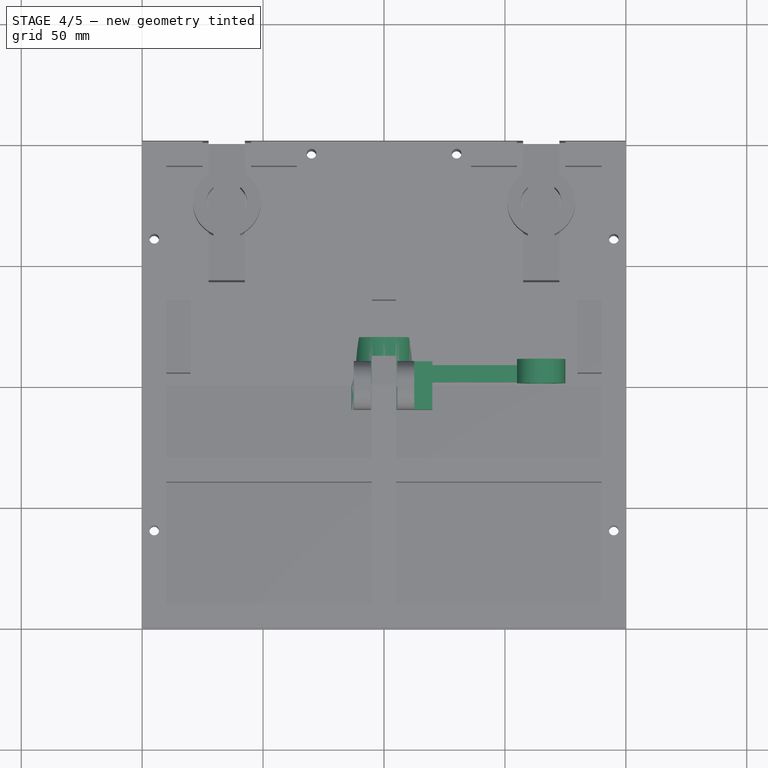
[diagram: stage 4 of 5 — top view after this stage's code; geometry added in this stage tinted green]
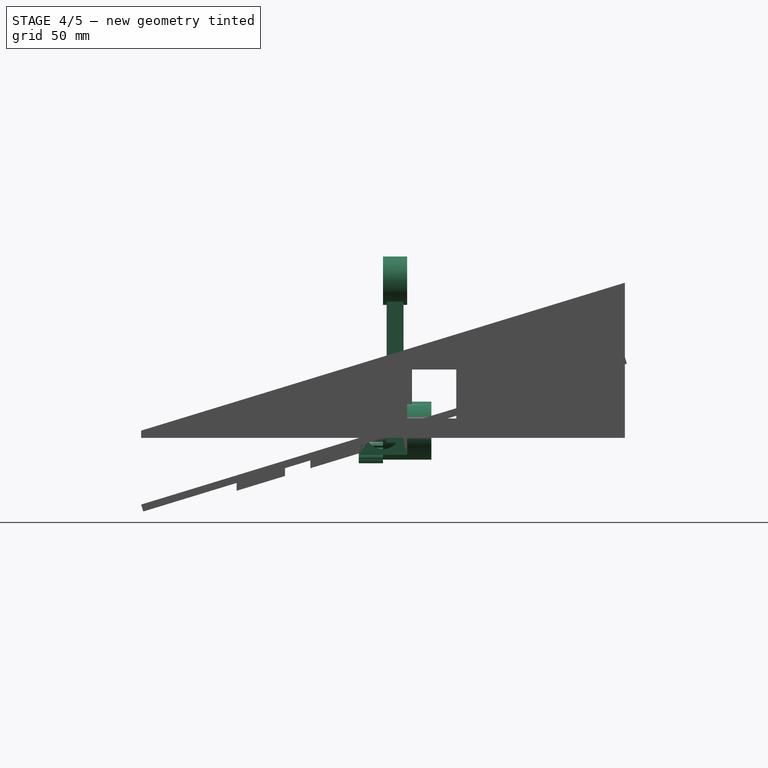
[diagram: stage 4 of 5 — right view after this stage's code; geometry added in this stage tinted green]
FEATURE [PartDesign::Body] Body006  label="Left_Rod_Support_End"
  Group = -> [Sketch033,Sketch032,Pad016,Pad015]
  Origin = -> Origin006
  Placement = pos=(-44.5,20,-1) rot=(0,0,1;0rad)
  Tip = -> Pad015
FEATURE [Sketcher::SketchObject] Sketch034  label="Outer001"
  FullyConstrained = true
  MapMode = 5
  Placement = pos=(0,0,0) rot=(1,0,0;1.5708rad)
  Support = -> [XZ_Plane007]
  sketch-geometry (7):
    g0: LineSegment StartX=10.3923 StartY=6 StartZ=0 EndX=0 EndY=12 EndZ=0
    g1: LineSegment StartX=0 StartY=12 StartZ=0 EndX=-10.3923 EndY=6 EndZ=0
    g2: LineSegment StartX=-10.3923 StartY=6 StartZ=0 EndX=-10.3923 EndY=-6 EndZ=0
    g3: LineSegment StartX=-10.3923 StartY=-6 StartZ=0 EndX=-1.42e-14 EndY=-12 EndZ=0
    g4: LineSegment StartX=-1.42e-14 StartY=-12 StartZ=0 EndX=10.3923 EndY=-6 EndZ=0
    g5: LineSegment StartX=10.3923 StartY=-6 StartZ=0 EndX=10.3923 EndY=6 EndZ=0
    g6: Circle CenterX=0 CenterY=0 CenterZ=0 NormalX=0 NormalY=0 NormalZ=1 AngleXU=0 Radius=12
  constraints (16):
    c: Coincident(g0,g1)
    c: Coincident(g1,g2)
    c: Coincident(g2,g3)
    c: Coincident(g3,g4)
    c: Coincident(g4,g5)
    c: Coincident(g5,g0)
    c: Equal(g0, g1-g5) x5
    c: PointOnObject(g0,g6)
    c: PointOnObject(g1,g6)
    c: PointOnObject(g2,g6)
    c: PointOnObject(g3,g6)
    c: PointOnObject(g4,g6)
    c: PointOnObject(g5,g6)
    c: Coincident(g6,g-1)
    c: Radius(g6) = 12
    c: DistanceX(g0,g-1) = 0
FEATURE [PartDesign::Pad] Pad018
  Direction = (1,1,1)
  Length = 3
  Length2 = 100
  Placement = pos=(0,0,0) rot=(1,0,0;1.5708rad)
  Profile = -> Sketch034
  Refine = true
  Type = 0
FEATURE [PartDesign::Body] Body007  label="Pedal_Rod_Left"
  Group = -> [Sketch035,Sketch034,Pad018,Pad017]
  Origin = -> Origin007
  Placement = pos=(-100,20,15) rot=(0,0,-1;1.5708rad)
  Tip = -> Pad017
FEATURE [Sketcher::SketchObject] Sketch036
  FullyConstrained = true
  MapMode = 5
  Placement = pos=(0,0,0) rot=(0.57735,0.57735,0.57735;2.0944rad)
  Support = -> [YZ_Plane008]
  sketch-geometry (5):
    g0: LineSegment StartX=-10 StartY=10 StartZ=0 EndX=10 EndY=10 EndZ=0
    g1: LineSegment StartX=10 StartY=10 StartZ=0 EndX=10 EndY=-10 EndZ=0
    g2: LineSegment StartX=10 StartY=-10 StartZ=0 EndX=-10 EndY=-10 EndZ=0
    g3: LineSegment StartX=-10 StartY=-10 StartZ=0 EndX=-10 EndY=10 EndZ=0
    g4: Circle CenterX=0 CenterY=0 CenterZ=0 NormalX=0 NormalY=0 NormalZ=1 AngleXU=0 Radius=7.6
  constraints (14):
    c: Coincident(g0,g1)
    c: Coincident(g1,g2)
    c: Coincident(g2,g3)
    c: Coincident(g3,g0)
    c: Horizontal(g0)
    c: Horizontal(g2)
    c: Vertical(g1)
    c: Vertical(g3)
    c: DistanceX(g0,g0) = 20
    c: DistanceY(g1,g1) = 20
    c: DistanceY(g2,g-1) = 10
    c: DistanceX(g2,g-1) = 10
    c: Coincident(g4,g-1)
    c: Radius(g4) = 7.6
FEATURE [PartDesign::Pad] Pad019
  Direction = (1,1,1)
  Length = 20
  Length2 = 100
  Placement = pos=(0,0,0) rot=(0.57735,0.57735,0.57735;2.0944rad)
  Profile = -> Sketch036
  Refine = true
  Type = 0
FEATURE [PartDesign::Body] Body008  label="RodEndBearing_Right001"
  Group = -> [Sketch036,Pad019]
  Origin = -> Origin008
  Placement = pos=(-100,20,15) rot=(0,0,1;0rad)
  Tip = -> Pad019
FEATURE [Sketcher::SketchObject] Sketch037  label="Axis001"
  FullyConstrained = true
  MapMode = 5
  Placement = pos=(0,0,0) rot=(1,0,0;1.5708rad)
  Support = -> [XZ_Plane009]
  sketch-geometry (2):
    g0: Circle CenterX=0 CenterY=0 CenterZ=0 NormalX=0 NormalY=0 NormalZ=1 AngleXU=0 Radius=7.6
    g1: Circle CenterX=0 CenterY=0 CenterZ=0 NormalX=0 NormalY=0 NormalZ=1 AngleXU=0 Radius=12
  constraints (4):
    c: Coincident(g0,g-1)
    c: Radius(g0) = 7.6
    c: Coincident(g1,g0)
    c: Radius(g1) = 12
FEATURE [Sketcher::SketchObject] Sketch038  label="LShape"
  AttachmentOffset = pos=(0,0,-1.5) rot=(0,0,1;0rad)
  FullyConstrained = true
  MapMode = 5
  Placement = pos=(0,1.5,3e-16) rot=(1,0,0;1.5708rad)
  Support = -> [XZ_Plane009]
  sketch-geometry (6):
    g0: LineSegment StartX=10 StartY=5 StartZ=0 EndX=60 EndY=5 EndZ=0
    g1: LineSegment StartX=60 StartY=5 StartZ=0 EndX=60 EndY=55 EndZ=0
    g2: LineSegment StartX=60 StartY=55 StartZ=0 EndX=70 EndY=55 EndZ=0
    g3: LineSegment StartX=70 StartY=55 StartZ=0 EndX=70 EndY=-5 EndZ=0
    g4: LineSegment StartX=70 StartY=-5 StartZ=0 EndX=10 EndY=-5 EndZ=0
    g5: LineSegment StartX=10 StartY=-5 StartZ=0 EndX=10 EndY=5 EndZ=0
  constraints (18):
    c: Horizontal(g0)
    c: Coincident(g0,g1)
    c: Vertical(g1)
    c: Coincident(g1,g2)
    c: Horizontal(g2)
    c: Coincident(g2,g3)
    c: Vertical(g3)
    c: Coincident(g3,g4)
    c: Horizontal(g4)
    c: Coincident(g4,g5)
    c: Coincident(g5,g0)
    c: Vertical(g5)
    c: DistanceX(g0,g0) = 50
    c: DistanceX(g4,g4) = 60
    c: DistanceY(g3,g3) = 60
    c: DistanceY(g1,g1) = 50
    c: DistanceY(g-1,g0) = 5
    c: DistanceX(g-1,g0) = 10
FEATURE [Sketcher::SketchObject] Sketch039  label="Pedal_hold001"
  FullyConstrained = true
  MapMode = 5
  Placement = pos=(0,0,0) rot=(1,0,0;1.5708rad)
  Support = -> [XZ_Plane009]
  sketch-geometry (8):
    g0: Circle CenterX=65 CenterY=62 CenterZ=0 NormalX=0 NormalY=0 NormalZ=1 AngleXU=0 Radius=10
    g1: LineSegment StartX=69.5033 StartY=59.4 StartZ=0 EndX=69.5033 EndY=64.6 EndZ=0
    g2: LineSegment StartX=69.5033 StartY=64.6 StartZ=0 EndX=65 EndY=67.2 EndZ=0
    g3: LineSegment StartX=65 StartY=67.2 StartZ=0 EndX=60.4967 EndY=64.6 EndZ=0
    g4: LineSegment StartX=60.4967 StartY=64.6 StartZ=0 EndX=60.4967 EndY=59.4 EndZ=0
    g5: LineSegment StartX=60.4967 StartY=59.4 StartZ=0 EndX=65 EndY=56.8 EndZ=0
    g6: LineSegment StartX=65 StartY=56.8 StartZ=0 EndX=69.5033 EndY=59.4 EndZ=0
    g7: Circle CenterX=65 CenterY=62 CenterZ=0 NormalX=0 NormalY=0 NormalZ=1 AngleXU=0 Radius=5.2
  constraints (19):
    c: Radius(g0) = 10
    c: Coincident(g1,g2)
    c: Coincident(g2,g3)
    c: Coincident(g3,g4)
    c: Coincident(g4,g5)
    c: Coincident(g5,g6)
    c: Coincident(g6,g1)
    c: Equal(g1, g2-g6) x5
    c: PointOnObject(g1,g7)
    c: PointOnObject(g2,g7)
    c: PointOnObject(g3,g7)
    c: PointOnObject(g4,g7)
    c: PointOnObject(g5,g7)
    c: PointOnObject(g6,g7)
    c: Coincident(g7,g0)
    c: Radius(g7) = 5.2
    c: DistanceX(g-1,g0) = 65
    c: DistanceY(g-1,g0) = 62
    c: DistanceX(g2,g0) = 0
FEATURE [Sketcher::SketchObject] Sketch040
  FullyConstrained = true
  MapMode = 5
  Placement = pos=(0,0,0) rot=(1,0,0;1.5708rad)
  Support = -> [XZ_Plane009]
  sketch-geometry (1):
    g0: Circle CenterX=0 CenterY=0 CenterZ=0 NormalX=0 NormalY=0 NormalZ=1 AngleXU=0 Radius=7.6
  constraints (2):
    c: Coincident(g0,g-1)
    c: Radius(g0) = 7.6
FEATURE [PartDesign::FeaturePython] involutegear001  # WARN: FeaturePython — macro-defined, semantics opaque (R4)
  AttacherType = Attacher::AttachEngine3D
  Placement = pos=(0,0,0) rot=(1,0,0;1.5708rad)
  backlash = 0
  beta = 0
  clearance = 0.25
  da = 27
  df = 22.5
  double_helix = false
  dw = 25
  head = 0
  height = 10
  module = 1
  numpoints = 6
  pressure_angle = 20
  properties_from_tool = false
  reversed_backlash = false
  shift = 0
  simple = false
  teeth = 25
  transverse_pitch = 3.14159
  undercut = false
  version = 0.0.3
FEATURE [PartDesign::Pad] Pad021
  BaseFeature = -> involutegear001
  Direction = (1,1,1)
  Length = 20
  Length2 = 100
  Placement = pos=(0,0,0) rot=(1,0,0;1.5708rad)
  Profile = -> Sketch037
  Refine = true
  Reversed = true
  Type = 0
FEATURE [PartDesign::Pad] Pad020
  BaseFeature = -> Pad021
  Direction = (1,1,1)
  Length = 7
  Length2 = 100
  Placement = pos=(0,0,0) rot=(1,0,0;1.5708rad)
  Profile = -> Sketch038
  Refine = true
  Reversed = true
  Type = 0
FEATURE [PartDesign::Pad] Pad022
  BaseFeature = -> Pad020
  Direction = (1,1,1)
  Length = 10
  Length2 = 100
  Placement = pos=(0,0,0) rot=(1,0,0;1.5708rad)
  Profile = -> Sketch039
  Refine = true
  Reversed = true
  Type = 0
FEATURE [PartDesign::Pocket] Pocket013
  BaseFeature = -> Pad022
  Length = 100
  Length2 = 100
  Midplane = true
  Placement = pos=(0,0,0) rot=(1,0,0;1.5708rad)
  Profile = -> Sketch040
  Refine = true
  Type = 0
FEATURE [PartDesign::Pocket] Pocket005
  BaseFeature = -> Pocket004
  Length = 2
  Length2 = 100
  Profile = -> Sketch011
  Refine = true
  Type = 0
FEATURE [PartDesign::Pocket] Pocket006
  BaseFeature = -> Pocket005
  Length = 10
  Length2 = 100
  Profile = -> Sketch013
  Refine = true
  Reversed = true
  Type = 0
FEATURE [PartDesign::Pocket] Pocket007
  BaseFeature = -> Pocket006
  Length = 10
  Length2 = 100
  Profile = -> Sketch014
  Refine = true
  Reversed = true
  Type = 0
FEATURE [Sketcher::SketchObject] Sketch015  label="Rod_OtherEdge_Supporter"
  FullyConstrained = true
  MapMode = 5
  Support = -> [XY_Plane]
  sketch-geometry (8):
    g0: LineSegment StartX=40 StartY=30 StartZ=0 EndX=49 EndY=30 EndZ=0
    g1: LineSegment StartX=49 StartY=30 StartZ=0 EndX=49 EndY=10 EndZ=0
    g2: LineSegment StartX=49 StartY=10 StartZ=0 EndX=40 EndY=10 EndZ=0
    g3: LineSegment StartX=40 StartY=10 StartZ=0 EndX=40 EndY=30 EndZ=0
    g4: LineSegment StartX=-49 StartY=30 StartZ=0 EndX=-40 EndY=30 EndZ=0
    g5: LineSegment StartX=-40 StartY=30 StartZ=0 EndX=-40 EndY=10 EndZ=0
    g6: LineSegment StartX=-40 StartY=10 StartZ=0 EndX=-49 EndY=10 EndZ=0
    g7: LineSegment StartX=-49 StartY=10 StartZ=0 EndX=-49 EndY=30 EndZ=0
  constraints (24):
    c: Coincident(g0,g1)
    c: Coincident(g1,g2)
    c: Coincident(g2,g3)
    c: Coincident(g3,g0)
    c: Horizontal(g0)
    c: Horizontal(g2)
    c: Vertical(g1)
    c: Vertical(g3)
    c: Coincident(g4,g5)
    c: Coincident(g5,g6)
    c: Coincident(g6,g7)
    c: Coincident(g7,g4)
    c: Horizontal(g4)
    c: Horizontal(g6)
    c: Vertical(g5)
    c: Vertical(g7)
    c: DistanceX(g0,g0) = 9
    c: DistanceX(g4,g4) = 9
    c: DistanceY(g7,g7) = 20
    c: DistanceY(g1,g1) = 20
    c: DistanceY(g-1,g6) = 10
    c: DistanceY(g-1,g2) = 10
    c: DistanceX(g6,g-1) = 49
    c: DistanceX(g-1,g1) = 49
FEATURE [Sketcher::SketchObject] Sketch016  label="MountGider"
  FullyConstrained = true
  MapMode = 5
  Support = -> [XY_Plane]
  sketch-geometry (16):
    g0: LineSegment StartX=40 StartY=22.5 StartZ=0 EndX=49 EndY=22.5 EndZ=0
    g1: LineSegment StartX=49 StartY=22.5 StartZ=0 EndX=49 EndY=17.5 EndZ=0
    g2: LineSegment StartX=49 StartY=17.5 StartZ=0 EndX=40 EndY=17.5 EndZ=0
    g3: LineSegment StartX=40 StartY=17.5 StartZ=0 EndX=40 EndY=22.5 EndZ=0
    g4: LineSegment StartX=30 StartY=42.5 StartZ=0 EndX=40 EndY=42.5 EndZ=0
    g5: LineSegment StartX=40 StartY=42.5 StartZ=0 EndX=40 EndY=37.5 EndZ=0
    g6: LineSegment StartX=40 StartY=37.5 StartZ=0 EndX=30 EndY=37.5 EndZ=0
    g7: LineSegment StartX=30 StartY=37.5 StartZ=0 EndX=30 EndY=42.5 EndZ=0
    g8: LineSegment StartX=-49 StartY=22.5 StartZ=0 EndX=-40 EndY=22.5 EndZ=0
    g9: LineSegment StartX=-40 StartY=22.5 StartZ=0 EndX=-40 EndY=17.5 EndZ=0
    g10: LineSegment StartX=-40 StartY=17.5 StartZ=0 EndX=-49 EndY=17.5 EndZ=0
    g11: LineSegment StartX=-49 StartY=17.5 StartZ=0 EndX=-49 EndY=22.5 EndZ=0
    g12: LineSegment StartX=-40 StartY=42.5 StartZ=0 EndX=-30 EndY=42.5 EndZ=0
    g13: LineSegment StartX=-30 StartY=42.5 StartZ=0 EndX=-30 EndY=37.5 EndZ=0
    g14: LineSegment StartX=-30 StartY=37.5 StartZ=0 EndX=-40 EndY=37.5 EndZ=0
    g15: LineSegment StartX=-40 StartY=37.5 StartZ=0 EndX=-40 EndY=42.5 EndZ=0
  constraints (48):
    c: Coincident(g0,g1)
    c: Coincident(g1,g2)
    c: Coincident(g2,g3)
    c: Coincident(g3,g0)
    c: Horizontal(g0)
    c: Horizontal(g2)
    c: Vertical(g1)
    c: Vertical(g3)
    c: Coincident(g4,g5)
    c: Coincident(g5,g6)
    c: Coincident(g6,g7)
    c: Coincident(g7,g4)
    c: Horizontal(g4)
    c: Horizontal(g6)
    c: Vertical(g5)
    c: Vertical(g7)
    c: DistanceX(g4,g4) = 10
    c: DistanceX(g0,g0) = 9
    c: DistanceY(g5,g5) = 5
    c: DistanceY(g-1,g6) = 37.5
    c: DistanceY(g1,g1) = 5
    c: DistanceY(g-1,g2) = 17.5
    c: DistanceX(g-1,g2) = 40
    c: DistanceX(g-1,g6) = 30
    c: Coincident(g8,g9)
    c: Coincident(g9,g10)
    c: Coincident(g10,g11)
    c: Coincident(g11,g8)
    c: Horizontal(g8)
    c: Horizontal(g10)
    c: Vertical(g9)
    c: Vertical(g11)
    c: Coincident(g12,g13)
    c: Coincident(g13,g14)
    c: Coincident(g14,g15)
    c: Coincident(g15,g12)
    c: Horizontal(g12)
    c: Horizontal(g14)
    c: Vertical(g13)
    c: Vertical(g15)
    c: DistanceY(g13,g13) = 5
    c: DistanceY(g11,g11) = 5
    c: DistanceX(g12,g12) = 10
    c: DistanceX(g8,g8) = 9
    c: DistanceX(g13,g-1) = 30
    c: DistanceX(g9,g-1) = 40
    c: DistanceY(g-1,g13) = 37.5
    c: DistanceY(g-1,g9) = 17.5
FEATURE [PartDesign::Pocket] Pocket008
  BaseFeature = -> Pocket007
  Length = 1
  Length2 = 100
  Profile = -> Sketch015
  Refine = true
  Type = 0
FEATURE [PartDesign::Pocket] Pocket009
  BaseFeature = -> Pocket008
  Length = 5
  Length2 = 100
  Profile = -> Sketch016
  Refine = true
  Type = 0
FEATURE [PartDesign::Chamfer] Chamfer
  Angle = 45
  Base = -> Pocket009 [Edge180,Edge179,Edge182,Edge181]
  BaseFeature = -> Pocket009
  ChamferType = 0
  FlipDirection = false
  Refine = true
  Size = 5
  Size2 = 1
  SupportTransform = false
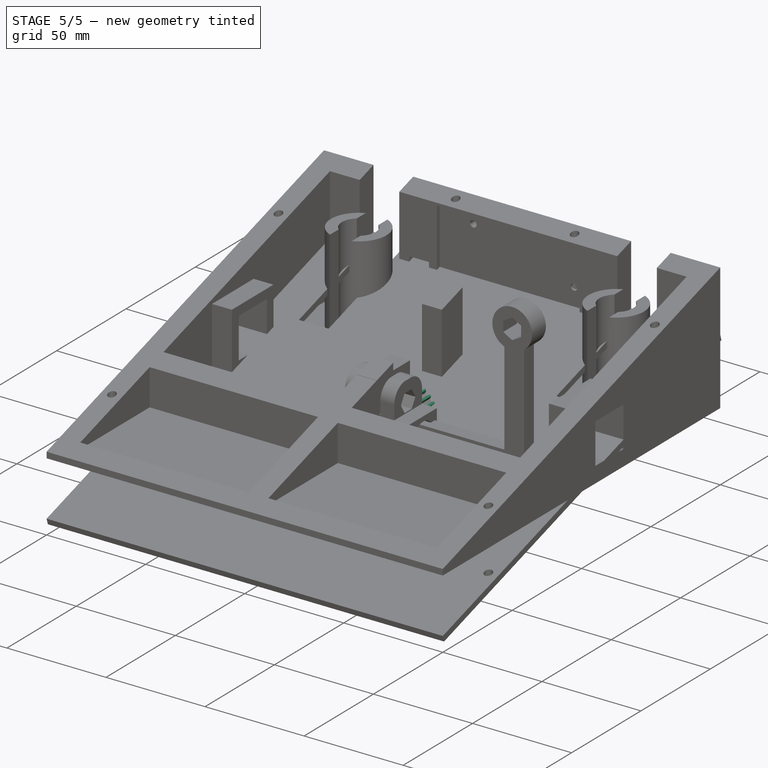
[diagram: stage 5 of 5 — iso view after this stage's code; geometry added in this stage tinted green]
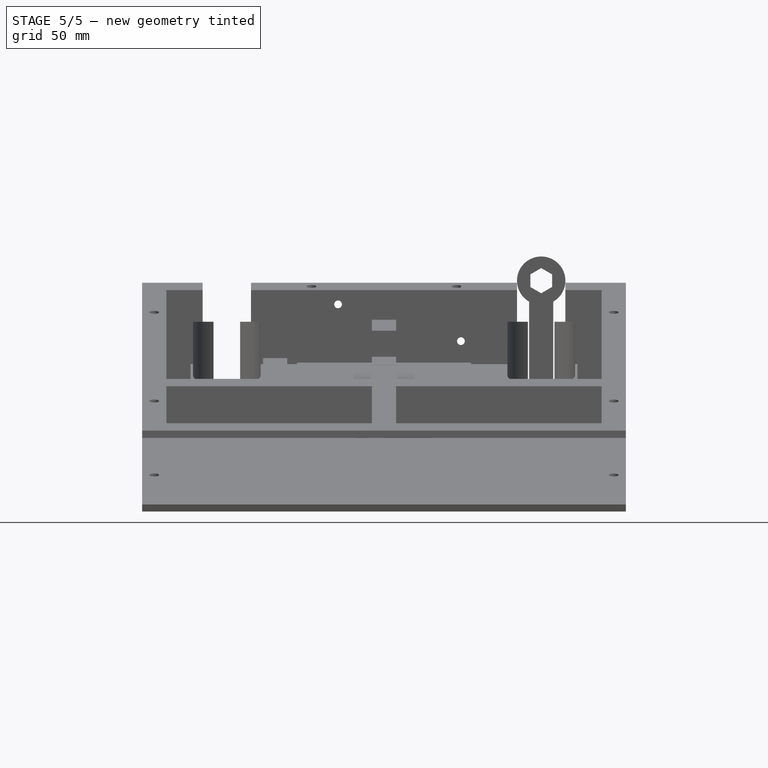
[diagram: stage 5 of 5 — front view after this stage's code; geometry added in this stage tinted green]
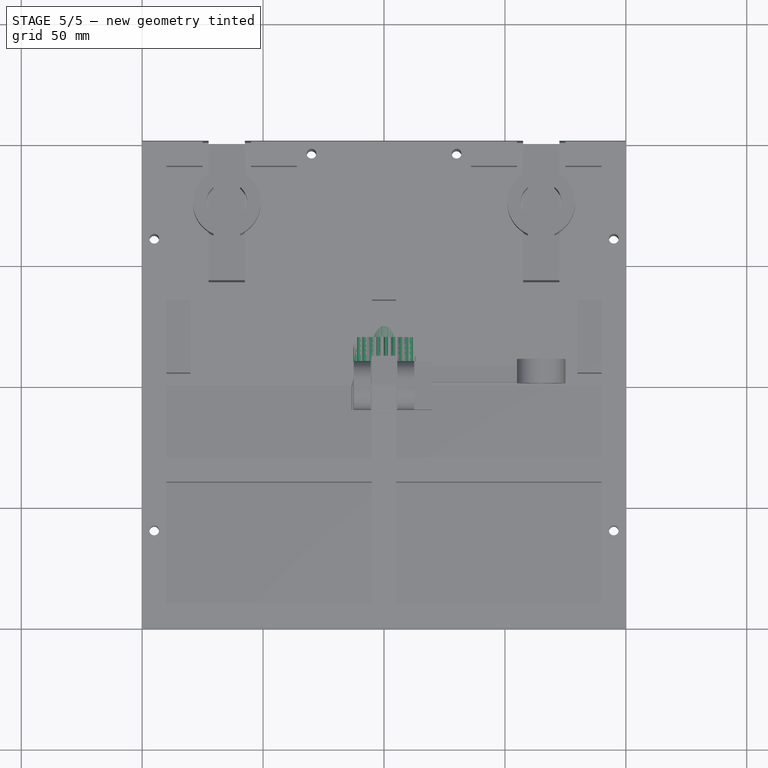
[diagram: stage 5 of 5 — top view after this stage's code; geometry added in this stage tinted green]
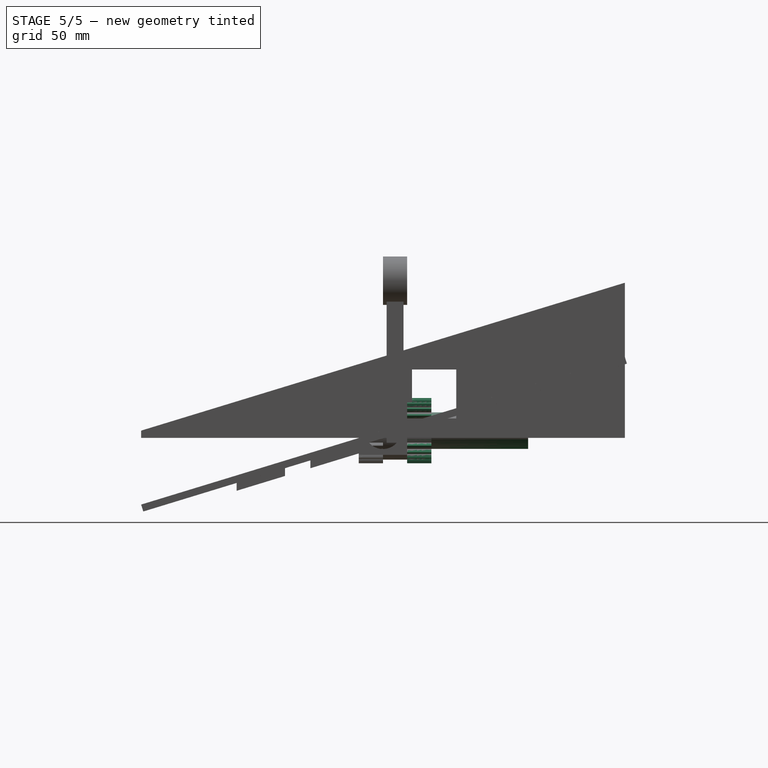
[diagram: stage 5 of 5 — right view after this stage's code; geometry added in this stage tinted green]
FEATURE [Sketcher::SketchObject] Sketch020
  FullyConstrained = true
  MapMode = 5
  Placement = pos=(0,0,0) rot=(0.57735,0.57735,0.57735;2.0944rad)
  Support = -> [YZ_Plane002]
  sketch-geometry (5):
    g0: LineSegment StartX=-10 StartY=10 StartZ=0 EndX=10 EndY=10 EndZ=0
    g1: LineSegment StartX=10 StartY=10 StartZ=0 EndX=10 EndY=-10 EndZ=0
    g2: LineSegment StartX=10 StartY=-10 StartZ=0 EndX=-10 EndY=-10 EndZ=0
    g3: LineSegment StartX=-10 StartY=-10 StartZ=0 EndX=-10 EndY=10 EndZ=0
    g4: Circle CenterX=0 CenterY=0 CenterZ=0 NormalX=0 NormalY=0 NormalZ=1 AngleXU=0 Radius=7.6
  constraints (14):
    c: Coincident(g0,g1)
    c: Coincident(g1,g2)
    c: Coincident(g2,g3)
    c: Coincident(g3,g0)
    c: Horizontal(g0)
    c: Horizontal(g2)
    c: Vertical(g1)
    c: Vertical(g3)
    c: DistanceX(g0,g0) = 20
    c: DistanceY(g1,g1) = 20
    c: DistanceY(g2,g-1) = 10
    c: DistanceX(g2,g-1) = 10
    c: Coincident(g4,g-1)
    c: Radius(g4) = 7.6
FEATURE [PartDesign::Pad] Pad007
  Direction = (1,1,1)
  Length = 20
  Length2 = 100
  Placement = pos=(0,0,0) rot=(0.57735,0.57735,0.57735;2.0944rad)
  Profile = -> Sketch020
  Refine = true
  Type = 0
FEATURE [PartDesign::Body] Body002  label="RodEndBearing_Right"
  Group = -> [Sketch020,Pad007]
  Origin = -> Origin002
  Placement = pos=(80,20,15) rot=(0,0,1;0rad)
  Tip = -> Pad007
FEATURE [Sketcher::SketchObject] Sketch021  label="Outer"
  FullyConstrained = true
  MapMode = 5
  Placement = pos=(0,0,0) rot=(1,0,0;1.5708rad)
  Support = -> [XZ_Plane003]
  sketch-geometry (7):
    g0: LineSegment StartX=10.3923 StartY=6 StartZ=0 EndX=0 EndY=12 EndZ=0
    g1: LineSegment StartX=0 StartY=12 StartZ=0 EndX=-10.3923 EndY=6 EndZ=0
    g2: LineSegment StartX=-10.3923 StartY=6 StartZ=0 EndX=-10.3923 EndY=-6 EndZ=0
    g3: LineSegment StartX=-10.3923 StartY=-6 StartZ=0 EndX=-1.42e-14 EndY=-12 EndZ=0
    g4: LineSegment StartX=-1.42e-14 StartY=-12 StartZ=0 EndX=10.3923 EndY=-6 EndZ=0
    g5: LineSegment StartX=10.3923 StartY=-6 StartZ=0 EndX=10.3923 EndY=6 EndZ=0
    g6: Circle CenterX=0 CenterY=0 CenterZ=0 NormalX=0 NormalY=0 NormalZ=1 AngleXU=0 Radius=12
  constraints (16):
    c: Coincident(g0,g1)
    c: Coincident(g1,g2)
    c: Coincident(g2,g3)
    c: Coincident(g3,g4)
    c: Coincident(g4,g5)
    c: Coincident(g5,g0)
    c: Equal(g0, g1-g5) x5
    c: PointOnObject(g0,g6)
    c: PointOnObject(g1,g6)
    c: PointOnObject(g2,g6)
    c: PointOnObject(g3,g6)
    c: PointOnObject(g4,g6)
    c: PointOnObject(g5,g6)
    c: Coincident(g6,g-1)
    c: Radius(g6) = 12
    c: DistanceX(g0,g-1) = 0
FEATURE [Sketcher::SketchObject] Sketch022  label="InnerRod"
  FullyConstrained = true
  MapMode = 5
  Placement = pos=(0,0,0) rot=(1,0,0;1.5708rad)
  Support = -> [XZ_Plane003]
  sketch-geometry (1):
    g0: Circle CenterX=0 CenterY=0 CenterZ=0 NormalX=0 NormalY=0 NormalZ=1 AngleXU=0 Radius=7.55
  constraints (2):
    c: Coincident(g0,g-1)
    c: Radius(g0) = 7.55
FEATURE [PartDesign::Pad] Pad009
  Direction = (1,1,1)
  Length = 3
  Length2 = 100
  Placement = pos=(0,0,0) rot=(1,0,0;1.5708rad)
  Profile = -> Sketch021
  Refine = true
  Type = 0
FEATURE [PartDesign::Pad] Pad008
  BaseFeature = -> Pad009
  Direction = (1,1,1)
  Length = 60
  Length2 = 100
  Placement = pos=(0,0,0) rot=(1,0,0;1.5708rad)
  Profile = -> Sketch022
  Refine = true
  Reversed = true
  Type = 0
FEATURE [PartDesign::Body] Body003  label="Pedal_Rod_Right"
  Group = -> [Sketch022,Sketch021,Pad009,Pad008]
  Origin = -> Origin003
  Placement = pos=(100,20,15) rot=(0,0,1;1.5708rad)
  Tip = -> Pad008
FEATURE [Sketcher::SketchObject] Sketch023  label="L_Frame"
  AttachmentOffset = pos=(0,0,-1.5) rot=(0,0,1;0rad)
  FullyConstrained = true
  MapMode = 5
  Placement = pos=(0,1.5,3e-16) rot=(1,0,0;1.5708rad)
  Support = -> [XZ_Plane004]
  sketch-geometry (6):
    g0: LineSegment StartX=10 StartY=5 StartZ=0 EndX=60 EndY=5 EndZ=0
    g1: LineSegment StartX=60 StartY=5 StartZ=0 EndX=60 EndY=55 EndZ=0
    g2: LineSegment StartX=60 StartY=55 StartZ=0 EndX=70 EndY=55 EndZ=0
    g3: LineSegment StartX=70 StartY=55 StartZ=0 EndX=70 EndY=-5 EndZ=0
    g4: LineSegment StartX=70 StartY=-5 StartZ=0 EndX=10 EndY=-5 EndZ=0
    g5: LineSegment StartX=10 StartY=-5 StartZ=0 EndX=10 EndY=5 EndZ=0
  constraints (18):
    c: Horizontal(g0)
    c: Coincident(g0,g1)
    c: Vertical(g1)
    c: Coincident(g1,g2)
    c: Horizontal(g2)
    c: Coincident(g2,g3)
    c: Vertical(g3)
    c: Coincident(g3,g4)
    c: Horizontal(g4)
    c: Coincident(g4,g5)
    c: Coincident(g5,g0)
    c: Vertical(g5)
    c: DistanceX(g0,g0) = 50
    c: DistanceX(g4,g4) = 60
    c: DistanceY(g3,g3) = 60
    c: DistanceY(g1,g1) = 50
    c: DistanceY(g-1,g0) = 5
    c: DistanceX(g-1,g0) = 10
FEATURE [PartDesign::FeaturePython] involutegear  # WARN: FeaturePython — macro-defined, semantics opaque (R4)
  AttacherType = Attacher::AttachEngine3D
  Placement = pos=(0,20,0) rot=(1,0,0;1.5708rad)
  backlash = 0
  beta = 0
  clearance = 0.25
  da = 27
  df = 22.5
  double_helix = false
  dw = 25
  head = 0
  height = 10
  module = 1
  numpoints = 6
  pressure_angle = 20
  properties_from_tool = false
  reversed_backlash = false
  shift = 0
  simple = false
  teeth = 25
  transverse_pitch = 3.14159
  undercut = false
  version = 0.0.3
FEATURE [Sketcher::SketchObject] Sketch024  label="Axis"
  FullyConstrained = true
  MapMode = 5
  Placement = pos=(0,0,0) rot=(1,0,0;1.5708rad)
  Support = -> [XZ_Plane004]
  sketch-geometry (2):
    g0: Circle CenterX=0 CenterY=0 CenterZ=0 NormalX=0 NormalY=0 NormalZ=1 AngleXU=0 Radius=7.6
    g1: Circle CenterX=0 CenterY=0 CenterZ=0 NormalX=0 NormalY=0 NormalZ=1 AngleXU=0 Radius=12
  constraints (4):
    c: Coincident(g0,g-1)
    c: Radius(g0) = 7.6
    c: Coincident(g1,g0)
    c: Radius(g1) = 12
FEATURE [PartDesign::Pad] Pad010
  BaseFeature = -> involutegear
  Direction = (1,1,1)
  Length = 20
  Length2 = 100
  Midplane = true
  Placement = pos=(0,20,0) rot=(1,0,0;1.5708rad)
  Profile = -> Sketch024
  Refine = true
  Type = 0
FEATURE [PartDesign::Pad] Pad012
  BaseFeature = -> Pad010
  Direction = (1,1,1)
  Length = 7
  Length2 = 100
  Placement = pos=(0,20,0) rot=(1,0,0;1.5708rad)
  Profile = -> Sketch023
  Refine = true
  Reversed = true
  Type = 0
FEATURE [Sketcher::SketchObject] Sketch025  label="Pedal_hold"
  FullyConstrained = true
  MapMode = 5
  Placement = pos=(0,0,0) rot=(1,0,0;1.5708rad)
  Support = -> [XZ_Plane004]
  sketch-geometry (8):
    g0: Circle CenterX=65 CenterY=62 CenterZ=0 NormalX=0 NormalY=0 NormalZ=1 AngleXU=0 Radius=10
    g1: LineSegment StartX=69.5033 StartY=59.4 StartZ=0 EndX=69.5033 EndY=64.6 EndZ=0
    g2: LineSegment StartX=69.5033 StartY=64.6 StartZ=0 EndX=65 EndY=67.2 EndZ=0
    g3: LineSegment StartX=65 StartY=67.2 StartZ=0 EndX=60.4967 EndY=64.6 EndZ=0
    g4: LineSegment StartX=60.4967 StartY=64.6 StartZ=0 EndX=60.4967 EndY=59.4 EndZ=0
    g5: LineSegment StartX=60.4967 StartY=59.4 StartZ=0 EndX=65 EndY=56.8 EndZ=0
    g6: LineSegment StartX=65 StartY=56.8 StartZ=0 EndX=69.5033 EndY=59.4 EndZ=0
    g7: Circle CenterX=65 CenterY=62 CenterZ=0 NormalX=0 NormalY=0 NormalZ=1 AngleXU=0 Radius=5.2
  constraints (19):
    c: Radius(g0) = 10
    c: Coincident(g1,g2)
    c: Coincident(g2,g3)
    c: Coincident(g3,g4)
    c: Coincident(g4,g5)
    c: Coincident(g5,g6)
    c: Coincident(g6,g1)
    c: Equal(g1, g2-g6) x5
    c: PointOnObject(g1,g7)
    c: PointOnObject(g2,g7)
    c: PointOnObject(g3,g7)
    c: PointOnObject(g4,g7)
    c: PointOnObject(g5,g7)
    c: PointOnObject(g6,g7)
    c: Coincident(g7,g0)
    c: Radius(g7) = 5.2
    c: DistanceX(g-1,g0) = 65
    c: DistanceY(g-1,g0) = 62
    c: DistanceX(g2,g0) = 0
FEATURE [PartDesign::Pad] Pad011
  BaseFeature = -> Pad012
  Direction = (1,1,1)
  Length = 10
  Length2 = 100
  Placement = pos=(0,20,0) rot=(1,0,0;1.5708rad)
  Profile = -> Sketch025
  Refine = true
  Reversed = true
  Type = 0
FEATURE [Sketcher::SketchObject] Sketch026
  FullyConstrained = true
  MapMode = 5
  Placement = pos=(0,0,0) rot=(1,0,0;1.5708rad)
  Support = -> [XZ_Plane004]
  sketch-geometry (1):
    g0: Circle CenterX=0 CenterY=0 CenterZ=0 NormalX=0 NormalY=0 NormalZ=1 AngleXU=0 Radius=7.6
  constraints (2):
    c: Coincident(g0,g-1)
    c: Radius(g0) = 7.6
FEATURE [PartDesign::Pocket] Pocket010
  BaseFeature = -> Pad011
  Length = 100
  Length2 = 100
  Midplane = true
  Placement = pos=(0,20,0) rot=(1,0,0;1.5708rad)
  Profile = -> Sketch026
  Refine = true
  Type = 0
FEATURE [PartDesign::Body] Body004  label="PedalArm_Right"
  Group = -> [Sketch024,Sketch023,Sketch025,involutegear,Sketch026,Pad010,Pad012,Pad011,Pocket010]
  Origin = -> Origin004
  Placement = pos=(70,20,15) rot=(0,0,1;1.5708rad)
  Tip = -> Pocket010
FEATURE [Sketcher::SketchObject] Sketch030
  FullyConstrained = true
  MapMode = 5
  Support = -> [XY_Plane005]
  sketch-geometry (4):
    g0: LineSegment StartX=-4.45 StartY=-2.5 StartZ=0 EndX=4.45 EndY=-2.5 EndZ=0
    g1: LineSegment StartX=4.45 StartY=-2.5 StartZ=0 EndX=4.45 EndY=2.5 EndZ=0
    g2: LineSegment StartX=4.45 StartY=2.5 StartZ=0 EndX=-4.45 EndY=2.5 EndZ=0
    g3: LineSegment StartX=-4.45 StartY=2.5 StartZ=0 EndX=-4.45 EndY=-2.5 EndZ=0
  constraints (12):
    c: Coincident(g0,g1)
    c: Coincident(g1,g2)
    c: Coincident(g2,g3)
    c: Coincident(g3,g0)
    c: Horizontal(g0)
    c: Horizontal(g2)
    c: Vertical(g1)
    c: Vertical(g3)
    c: DistanceY(g1,g1) = 5
    c: DistanceX(g0,g0) = 8.9
    c: DistanceX(g0,g-1) = 4.45
    c: DistanceY(g-1,g2) = 2.5
FEATURE [Sketcher::SketchObject] Sketch031
  FullyConstrained = true
  MapMode = 5
  Placement = pos=(0,0,0) rot=(0.57735,0.57735,0.57735;2.0944rad)
  Support = -> [YZ_Plane005]
  sketch-geometry (5):
    g0: LineSegment StartX=9.9 StartY=16 StartZ=0 EndX=9.9 EndY=0 EndZ=0
    g1: LineSegment StartX=9.9 StartY=0 StartZ=0 EndX=-9.9 EndY=0 EndZ=0
    g2: LineSegment StartX=-9.9 StartY=0 StartZ=0 EndX=-9.9 EndY=16 EndZ=0
    g3: ArcOfCircle CenterX=-1e-15 CenterY=16 CenterZ=0 NormalX=0 NormalY=0 NormalZ=1 AngleXU=0 Radius=9.9 StartAngle=1e-16 EndAngle=3.14159
    g4: Circle CenterX=-1e-15 CenterY=16 CenterZ=0 NormalX=0 NormalY=0 NormalZ=1 AngleXU=0 Radius=7.6
  constraints (13):
    c: Coincident(g0,g1)
    c: Coincident(g1,g2)
    c: Horizontal(g1)
    c: Vertical(g0)
    c: Vertical(g2)
    c: PointOnObject(g0,g-1)
    c: DistanceX(g1,g1) = 19.8
    c: DistanceY(g0,g0) = 16
    c: DistanceX(g2,g-1) = 9.9
    c: Tangent(g3,g2) = 1.5708
    c: Tangent(g3,g0) = 1.5708
    c: Coincident(g4,g3)
    c: Radius(g4) = 7.6
FEATURE [PartDesign::Pad] Pad014
  Direction = (1,1,1)
  Length = 8.9
  Length2 = 100
  Midplane = true
  Placement = pos=(0,0,0) rot=(0.57735,0.57735,0.57735;2.0944rad)
  Profile = -> Sketch031
  Refine = true
  Type = 0
FEATURE [PartDesign::Pad] Pad013
  BaseFeature = -> Pad014
  Direction = (1,1,1)
  Length = 2
  Length2 = 100
  Placement = pos=(0,0,0) rot=(0.57735,0.57735,0.57735;2.0944rad)
  Profile = -> Sketch030
  Refine = true
  Reversed = true
  Type = 0
FEATURE [PartDesign::Body] Body005  label="Right_Rod_Support_End"
  Group = -> [Sketch031,Sketch030,Pad014,Pad013]
  Origin = -> Origin005
  Placement = pos=(44.5,20,-1) rot=(0,0,1;0rad)
  Tip = -> Pad013
FEATURE [Sketcher::SketchObject] Sketch032
  FullyConstrained = true
  MapMode = 5
  Support = -> [XY_Plane006]
  sketch-geometry (4):
    g0: LineSegment StartX=-4.45 StartY=-2.5 StartZ=0 EndX=4.45 EndY=-2.5 EndZ=0
    g1: LineSegment StartX=4.45 StartY=-2.5 StartZ=0 EndX=4.45 EndY=2.5 EndZ=0
    g2: LineSegment StartX=4.45 StartY=2.5 StartZ=0 EndX=-4.45 EndY=2.5 EndZ=0
    g3: LineSegment StartX=-4.45 StartY=2.5 StartZ=0 EndX=-4.45 EndY=-2.5 EndZ=0
  constraints (12):
    c: Coincident(g0,g1)
    c: Coincident(g1,g2)
    c: Coincident(g2,g3)
    c: Coincident(g3,g0)
    c: Horizontal(g0)
    c: Horizontal(g2)
    c: Vertical(g1)
    c: Vertical(g3)
    c: DistanceY(g1,g1) = 5
    c: DistanceX(g0,g0) = 8.9
    c: DistanceX(g0,g-1) = 4.45
    c: DistanceY(g-1,g2) = 2.5
FEATURE [Sketcher::SketchObject] Sketch033
  FullyConstrained = true
  MapMode = 5
  Placement = pos=(0,0,0) rot=(0.57735,0.57735,0.57735;2.0944rad)
  Support = -> [YZ_Plane006]
  sketch-geometry (5):
    g0: LineSegment StartX=9.9 StartY=16 StartZ=0 EndX=9.9 EndY=0 EndZ=0
    g1: LineSegment StartX=9.9 StartY=0 StartZ=0 EndX=-9.9 EndY=0 EndZ=0
    g2: LineSegment StartX=-9.9 StartY=0 StartZ=0 EndX=-9.9 EndY=16 EndZ=0
    g3: ArcOfCircle CenterX=-1e-15 CenterY=16 CenterZ=0 NormalX=0 NormalY=0 NormalZ=1 AngleXU=0 Radius=9.9 StartAngle=1e-16 EndAngle=3.14159
    g4: Circle CenterX=-1e-15 CenterY=16 CenterZ=0 NormalX=0 NormalY=0 NormalZ=1 AngleXU=0 Radius=7.6
  constraints (13):
    c: Coincident(g0,g1)
    c: Coincident(g1,g2)
    c: Horizontal(g1)
    c: Vertical(g0)
    c: Vertical(g2)
    c: PointOnObject(g0,g-1)
    c: DistanceX(g1,g1) = 19.8
    c: DistanceY(g0,g0) = 16
    c: DistanceX(g2,g-1) = 9.9
    c: Tangent(g3,g2) = 1.5708
    c: Tangent(g3,g0) = 1.5708
    c: Coincident(g4,g3)
    c: Radius(g4) = 7.6
FEATURE [PartDesign::Pad] Pad016
  Direction = (1,1,1)
  Length = 8.9
  Length2 = 100
  Midplane = true
  Placement = pos=(0,0,0) rot=(0.57735,0.57735,0.57735;2.0944rad)
  Profile = -> Sketch033
  Refine = true
  Type = 0
FEATURE [PartDesign::Pad] Pad015
  BaseFeature = -> Pad016
  Direction = (1,1,1)
  Length = 2
  Length2 = 100
  Placement = pos=(0,0,0) rot=(0.57735,0.57735,0.57735;2.0944rad)
  Profile = -> Sketch032
  Refine = true
  Reversed = true
  Type = 0
FEATURE [Sketcher::SketchObject] Sketch035  label="InnerRod001"
  FullyConstrained = true
  MapMode = 5
  Placement = pos=(0,0,0) rot=(1,0,0;1.5708rad)
  Support = -> [XZ_Plane007]
  sketch-geometry (1):
    g0: Circle CenterX=0 CenterY=0 CenterZ=0 NormalX=0 NormalY=0 NormalZ=1 AngleXU=0 Radius=7.55
  constraints (2):
    c: Coincident(g0,g-1)
    c: Radius(g0) = 7.55
FEATURE [PartDesign::Pad] Pad017
  BaseFeature = -> Pad018
  Direction = (1,1,1)
  Length = 60
  Length2 = 100
  Placement = pos=(0,0,0) rot=(1,0,0;1.5708rad)
  Profile = -> Sketch035
  Refine = true
  Reversed = true
  Type = 0
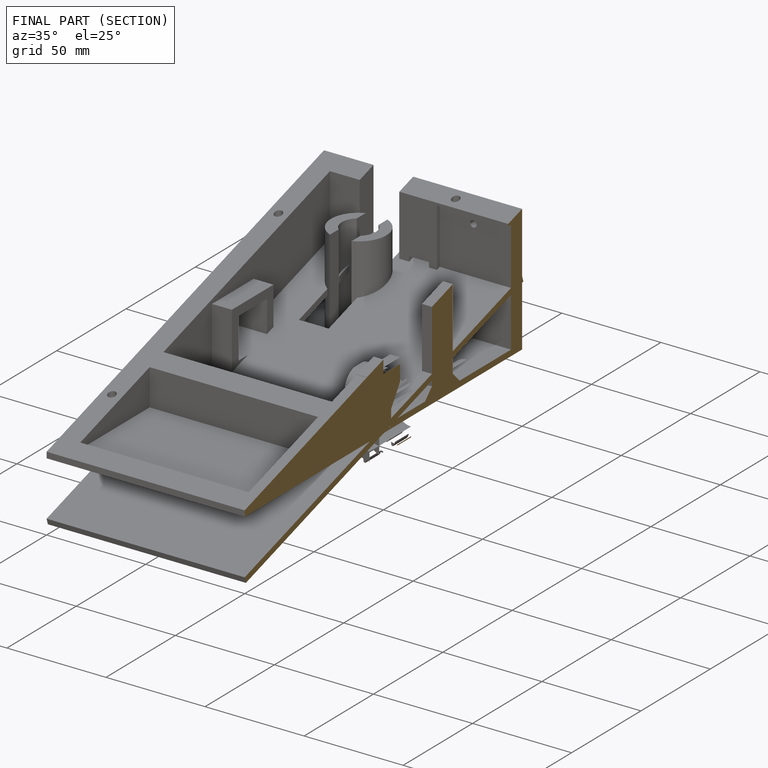
[diagram: finished part — half-section view (interior)]
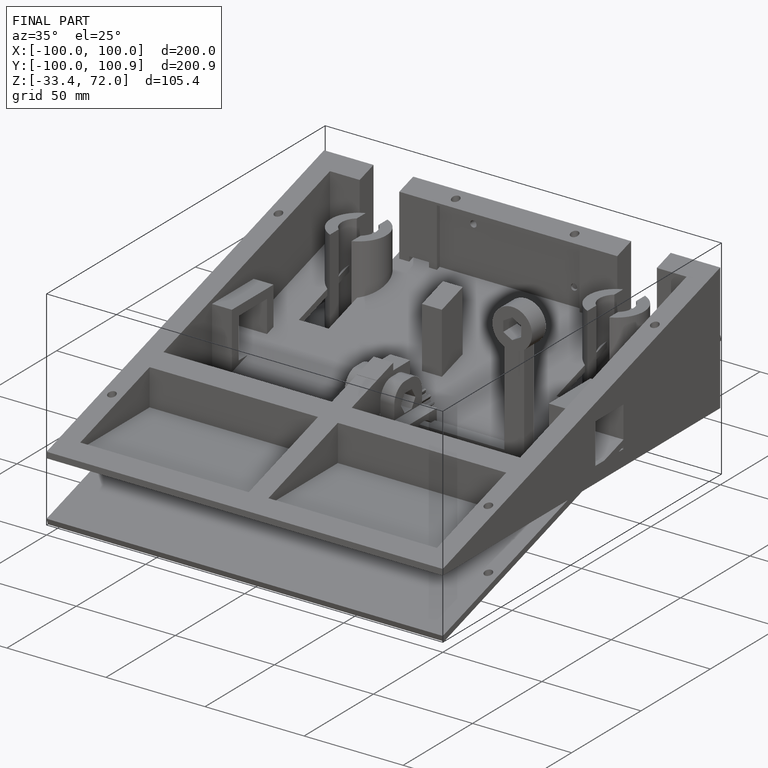
[diagram: finished part — iso view with bounding-box wireframe]
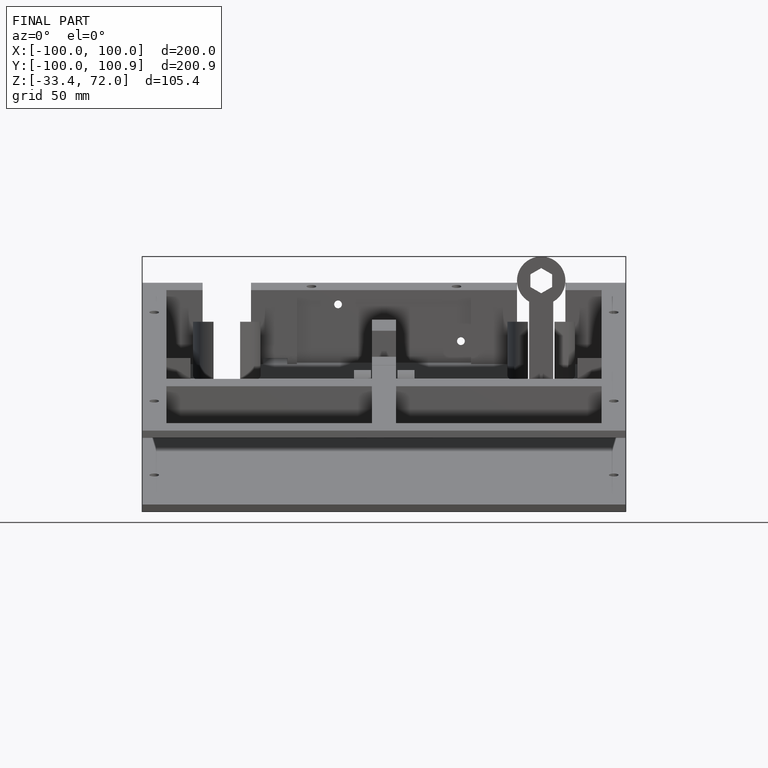
[diagram: finished part — front view with bounding-box wireframe]
